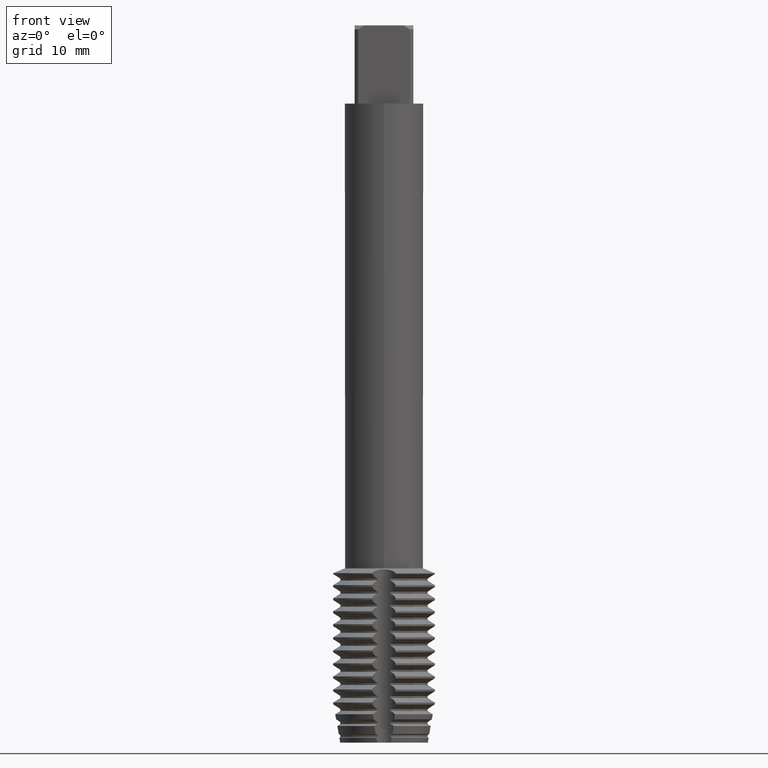
[diagram: clean part render]
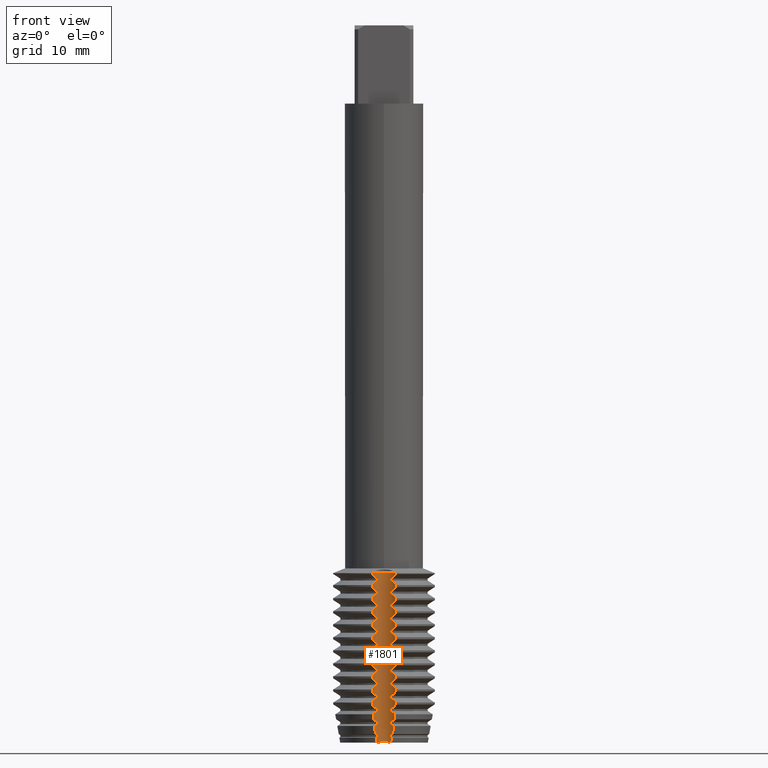
[diagram: same view with one face highlighted and labeled with its STEP entity id]
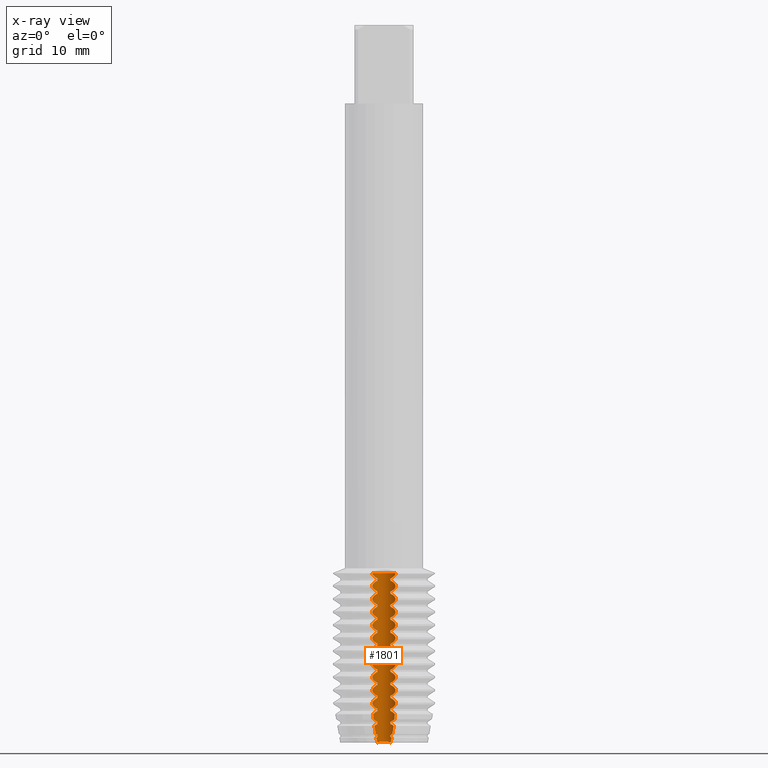
[diagram: x-ray of the same camera — body ghosted, the highlighted face saturated]
A machine part, front view. The second image highlights one B-rep face of the part: STEP entity #1801.
The next image is the same camera in x-ray: the body ghosted, the highlighted face saturated — about 0% of this face is hidden behind the body in this view.
In plain terms, the highlighted cylindrical surface (edge-blend (fillet) strip) has radius 1.8353 mm, axis along (-0, -0, 1).
Its self-contained STEP definition (entity closure, byte-faithful):
#1641=EDGE_CURVE('',#3763,#3669,#4868,.T.);
#1661=VERTEX_POINT('',#4889);
#1671=EDGE_CURVE('',#3625,#2901,#4901,.T.);
#1689=VERTEX_POINT('',#4920);
#1693=EDGE_CURVE('',#4015,#2889,#4924,.T.);
#1753=EDGE_CURVE('',#4279,#3409,#4984,.T.);
#1785=VERTEX_POINT('',#5019);
#1801=ADVANCED_FACE('',(#5037),#5038,.F.);
#1807=VERTEX_POINT('',#5046);
#1809=EDGE_CURVE('',#2825,#3763,#5048,.T.);
#1815=VERTEX_POINT('',#5055);
#1817=VERTEX_POINT('',#5057);
#1845=VERTEX_POINT('',#5089);
#1851=EDGE_CURVE('',#4515,#1969,#5096,.T.);
#1853=EDGE_CURVE('',#2801,#2187,#5098,.T.);
#1867=EDGE_CURVE('',#4777,#3905,#5112,.T.);
#1875=VERTEX_POINT('',#5120);
#1877=VERTEX_POINT('',#5122);
#1887=EDGE_CURVE('',#4395,#2609,#5133,.T.);
#1955=EDGE_CURVE('',#3409,#4463,#5208,.T.);
#1957=EDGE_CURVE('',#4127,#3279,#5210,.T.);
#1969=VERTEX_POINT('',#5225);
#1971=EDGE_CURVE('',#3113,#3625,#5227,.T.);
#1977=EDGE_CURVE('',#4101,#3403,#5234,.T.);
#1979=VERTEX_POINT('',#5236);
#1987=EDGE_CURVE('',#3257,#1877,#5245,.T.);
#1989=VERTEX_POINT('',#5247);
#2013=EDGE_CURVE('',#2555,#2521,#5272,.T.);
#2025=EDGE_CURVE('',#2693,#2839,#5285,.T.);
#2027=VERTEX_POINT('',#5287);
#2041=VERTEX_POINT('',#5302);
#2047=VERTEX_POINT('',#5309);
#2053=EDGE_CURVE('',#2615,#2895,#5316,.T.);
#2057=EDGE_CURVE('',#2707,#4253,#5320,.T.);
#2071=EDGE_CURVE('',#3629,#2217,#5336,.T.);
#2075=EDGE_CURVE('',#1807,#2315,#5340,.T.);
#2083=VERTEX_POINT('',#5348);
#2093=EDGE_CURVE('',#3669,#3417,#5359,.T.);
#2107=EDGE_CURVE('',#3507,#3115,#5375,.T.);
#2123=EDGE_CURVE('',#3565,#3947,#5392,.T.);
#2133=EDGE_CURVE('',#2047,#3089,#5402,.T.);
#2135=EDGE_CURVE('',#1989,#4555,#5404,.T.);
#2153=EDGE_CURVE('',#3085,#4741,#5423,.T.);
#2155=VERTEX_POINT('',#5425);
#2163=EDGE_CURVE('',#3365,#2041,#5434,.T.);
#2187=VERTEX_POINT('',#5460);
#2201=EDGE_CURVE('',#3947,#3729,#5475,.T.);
#2205=VERTEX_POINT('',#5480);
#2207=EDGE_CURVE('',#3531,#1815,#5482,.T.);
#2217=VERTEX_POINT('',#5492);
#2241=EDGE_CURVE('',#2041,#3137,#5518,.T.);
#2251=EDGE_CURVE('',#4727,#3329,#5528,.T.);
#2267=EDGE_CURVE('',#2609,#4407,#5546,.T.);
#2315=VERTEX_POINT('',#5599);
#2347=VERTEX_POINT('',#5636);
#2355=VERTEX_POINT('',#5645);
#2397=EDGE_CURVE('',#3203,#1845,#5689,.T.);
#2403=EDGE_CURVE('',#2205,#4569,#5695,.T.);
#2475=VERTEX_POINT('',#5773);
#2477=EDGE_CURVE('',#1785,#3351,#5775,.T.);
#2479=EDGE_CURVE('',#2889,#2917,#5777,.T.);
#2495=VERTEX_POINT('',#5793);
#2521=VERTEX_POINT('',#5823);
#2525=EDGE_CURVE('',#4463,#4159,#5827,.T.);
#2555=VERTEX_POINT('',#5862);
#2565=EDGE_CURVE('',#3031,#2083,#5874,.T.);
#2575=VERTEX_POINT('',#5885);
#2609=VERTEX_POINT('',#5921);
#2615=VERTEX_POINT('',#5927);
#2653=EDGE_CURVE('',#4569,#4597,#5967,.T.);
#2655=EDGE_CURVE('',#4407,#4769,#5969,.T.);
#2677=EDGE_CURVE('',#3589,#4101,#5992,.T.);
#2693=VERTEX_POINT('',#6010);
#2695=VERTEX_POINT('',#6012);
#2701=EDGE_CURVE('',#1877,#3503,#6018,.T.);
#2707=VERTEX_POINT('',#6025);
#2715=EDGE_CURVE('',#3255,#3365,#6035,.T.);
#2735=EDGE_CURVE('',#2187,#3691,#6059,.T.);
#2737=VERTEX_POINT('',#6061);
#2795=EDGE_CURVE('',#1845,#4517,#6128,.T.);
#2801=VERTEX_POINT('',#6134);
#2823=VERTEX_POINT('',#6158);
#2825=VERTEX_POINT('',#6160);
#2839=VERTEX_POINT('',#6177);
#2841=EDGE_CURVE('',#2495,#1661,#6179,.T.);
#2851=VERTEX_POINT('',#6189);
#2889=VERTEX_POINT('',#6231);
#2895=VERTEX_POINT('',#6237);
#2901=VERTEX_POINT('',#6244);
#2903=VERTEX_POINT('',#6246);
#2917=VERTEX_POINT('',#6261);
#2921=EDGE_CURVE('',#2217,#3565,#6265,.T.);
#2927=EDGE_CURVE('',#3609,#2823,#6271,.T.);
#2941=VERTEX_POINT('',#6286);
#2951=EDGE_CURVE('',#3115,#3609,#6296,.T.);
#2955=EDGE_CURVE('',#3279,#1989,#6300,.T.);
#2963=EDGE_CURVE('',#4741,#1785,#6309,.T.);
#2965=EDGE_CURVE('',#1815,#1979,#6311,.T.);
#2995=EDGE_CURVE('',#1875,#2475,#6344,.T.);
#3003=VERTEX_POINT('',#6353);
#3019=EDGE_CURVE('',#4159,#4395,#6370,.T.);
#3031=VERTEX_POINT('',#6383);
#3059=EDGE_CURVE('',#3905,#3031,#6412,.T.);
#3085=VERTEX_POINT('',#6440);
#3089=VERTEX_POINT('',#6444);
#3095=EDGE_CURVE('',#4555,#4279,#6450,.T.);
#3103=VERTEX_POINT('',#6458);
#3113=VERTEX_POINT('',#6469);
#3115=VERTEX_POINT('',#6471);
#3129=EDGE_CURVE('',#2941,#4727,#6486,.T.);
#3133=EDGE_CURVE('',#2521,#1875,#6490,.T.);
#3137=VERTEX_POINT('',#6494);
#3139=VERTEX_POINT('',#6496);
#3141=VERTEX_POINT('',#6498);
#3149=EDGE_CURVE('',#4517,#2027,#6507,.T.);
#3155=EDGE_CURVE('',#2315,#3589,#6513,.T.);
#3203=VERTEX_POINT('',#6564);
#3247=EDGE_CURVE('',#1817,#4015,#6614,.T.);
#3255=VERTEX_POINT('',#6622);
#3257=VERTEX_POINT('',#6624);
#3265=EDGE_CURVE('',#2083,#4189,#6632,.T.);
#3279=VERTEX_POINT('',#6649);
#3327=EDGE_CURVE('',#2355,#2347,#6702,.T.);
#3329=VERTEX_POINT('',#6704);
#3351=VERTEX_POINT('',#6726);
#3353=EDGE_CURVE('',#4617,#3731,#6728,.T.);
#3365=VERTEX_POINT('',#6740);
#3403=VERTEX_POINT('',#6781);
#3407=EDGE_CURVE('',#3795,#2155,#6785,.T.);
#3409=VERTEX_POINT('',#6787);
#3417=VERTEX_POINT('',#6795);
#3427=EDGE_CURVE('',#4253,#1689,#6805,.T.);
#3443=EDGE_CURVE('',#2901,#2355,#6824,.T.);
#3449=VERTEX_POINT('',#6830);
#3487=EDGE_CURVE('',#2347,#2851,#6873,.T.);
#3503=VERTEX_POINT('',#6892);
#3507=VERTEX_POINT('',#6896);
#3517=VERTEX_POINT('',#6907);
#3519=EDGE_CURVE('',#4769,#2495,#6909,.T.);
#3527=EDGE_CURVE('',#1661,#1817,#6917,.T.);
#3529=EDGE_CURVE('',#4621,#2047,#6919,.T.);
#3531=VERTEX_POINT('',#6921);
#3541=EDGE_CURVE('',#3691,#3003,#6932,.T.);
#3565=VERTEX_POINT('',#6957);
#3579=EDGE_CURVE('',#3517,#3141,#6971,.T.);
#3581=EDGE_CURVE('',#2839,#3531,#6973,.T.);
#3589=VERTEX_POINT('',#6981);
#3609=VERTEX_POINT('',#7001);
#3611=VERTEX_POINT('',#7003);
#3625=VERTEX_POINT('',#7018);
#3629=VERTEX_POINT('',#7022);
#3657=EDGE_CURVE('',#4365,#3103,#7054,.T.);
#3669=VERTEX_POINT('',#7068);
#3691=VERTEX_POINT('',#7094);
#3703=EDGE_CURVE('',#1969,#4617,#7107,.T.);
#3721=EDGE_CURVE('',#3449,#2707,#7125,.T.);
#3729=VERTEX_POINT('',#7134);
#3731=VERTEX_POINT('',#7136);
#3743=EDGE_CURVE('',#2917,#3449,#7150,.T.);
#3763=VERTEX_POINT('',#7171);
#3765=VERTEX_POINT('',#7173);
#3785=EDGE_CURVE('',#3403,#3139,#7194,.T.);
#3789=EDGE_CURVE('',#3503,#2825,#7198,.T.);
#3795=VERTEX_POINT('',#7204);
#3839=EDGE_CURVE('',#2027,#4515,#7255,.T.);
#3853=EDGE_CURVE('',#2575,#4365,#7269,.T.);
#3905=VERTEX_POINT('',#7325);
#3913=EDGE_CURVE('',#3329,#2205,#7333,.T.);
#3947=VERTEX_POINT('',#7367);
#3989=EDGE_CURVE('',#3103,#3085,#7412,.T.);
#3991=EDGE_CURVE('',#1979,#4773,#7414,.T.);
#4001=EDGE_CURVE('',#3139,#3629,#7425,.T.);
#4009=EDGE_CURVE('',#2737,#2693,#7433,.T.);
#4015=VERTEX_POINT('',#7439);
#4027=EDGE_CURVE('',#3137,#4777,#7452,.T.);
#4057=EDGE_CURVE('',#3729,#2575,#7485,.T.);
#4099=EDGE_CURVE('',#2903,#2615,#7532,.T.);
#4101=VERTEX_POINT('',#7534);
#4103=EDGE_CURVE('',#1689,#2695,#7536,.T.);
#4109=VERTEX_POINT('',#7542);
#4127=VERTEX_POINT('',#7562);
#4151=EDGE_CURVE('',#2851,#2801,#7587,.T.);
#4159=VERTEX_POINT('',#7596);
#4171=EDGE_CURVE('',#3611,#1807,#7609,.T.);
#4189=VERTEX_POINT('',#7628);
#4191=EDGE_CURVE('',#2823,#2941,#7630,.T.);
#4239=EDGE_CURVE('',#4545,#2555,#7680,.T.);
#4251=EDGE_CURVE('',#4773,#4109,#7695,.T.);
#4253=VERTEX_POINT('',#7697);
#4279=VERTEX_POINT('',#7728);
#4289=EDGE_CURVE('',#4109,#3795,#7739,.T.);
#4337=EDGE_CURVE('',#4597,#3517,#7794,.T.);
#4365=VERTEX_POINT('',#7824);
#4369=EDGE_CURVE('',#3351,#4729,#7828,.T.);
#4395=VERTEX_POINT('',#7858);
#4407=VERTEX_POINT('',#7871);
#4437=EDGE_CURVE('',#2695,#2903,#7904,.T.);
#4463=VERTEX_POINT('',#7934);
#4497=EDGE_CURVE('',#2475,#3765,#7970,.T.);
#4515=VERTEX_POINT('',#7988);
#4517=VERTEX_POINT('',#7990);
#4545=VERTEX_POINT('',#8021);
#4555=VERTEX_POINT('',#8032);
#4569=VERTEX_POINT('',#8048);
#4571=EDGE_CURVE('',#3731,#3507,#8050,.T.);
#4597=VERTEX_POINT('',#8077);
#4599=EDGE_CURVE('',#3141,#3611,#8079,.T.);
#4617=VERTEX_POINT('',#8098);
#4621=VERTEX_POINT('',#8102);
#4623=EDGE_CURVE('',#2155,#3257,#8104,.T.);
#4637=EDGE_CURVE('',#4189,#3113,#8118,.T.);
#4641=EDGE_CURVE('',#4729,#3255,#8122,.T.);
#4709=EDGE_CURVE('',#2895,#2737,#8200,.T.);
#4725=EDGE_CURVE('',#3003,#4545,#8218,.T.);
#4727=VERTEX_POINT('',#8220);
#4729=VERTEX_POINT('',#8222);
#4741=VERTEX_POINT('',#8234);
#4751=EDGE_CURVE('',#3765,#4621,#8246,.T.);
#4759=EDGE_CURVE('',#3417,#3203,#8255,.T.);
#4769=VERTEX_POINT('',#8265);
#4773=VERTEX_POINT('',#8269);
#4777=VERTEX_POINT('',#8274);
#4795=EDGE_CURVE('',#3089,#4127,#8294,.T.);
#4868=B_SPLINE_CURVE_WITH_KNOTS('',3,(#8365,#8366,#8367,#8368,#8369,#8370,#8371,#8372),.UNSPECIFIED.,.F.,.F.,(4,2,2,4),(2.13275528768351,2.82720289929081,3.52165051089811,4.10401743600082),.UNSPECIFIED.);
#4889=CARTESIAN_POINT('',(0.987271720808468,-6.70065844147364,-91.1457956098522));
#4901=LINE('',#8421,#8422);
#4920=CARTESIAN_POINT('',(0.987271720808468,-6.70065844147364,-95.1457956098521));
#4924=B_SPLINE_CURVE_WITH_KNOTS('',3,(#8457,#8458,#8459,#8460,#8461,#8462,#8463,#8464),.UNSPECIFIED.,.F.,.F.,(4,2,2,4),(2.19973205003222,2.89417966163952,3.58862727324682,4.17099419834953),.UNSPECIFIED.);
#4984=LINE('',#8600,#8601);
#5019=CARTESIAN_POINT('',(-1.77972067254717,-7.79952526297006,-97.8542043901478));
#5037=FACE_OUTER_BOUND('',#8677,.T.);
#5038=CYLINDRICAL_SURFACE('',#8678,1.83530850904129);
#5046=CARTESIAN_POINT('',(-0.987271720808469,-6.70065844147364,-105.145795609852));
#5048=B_SPLINE_CURVE_WITH_KNOTS('',3,(#8689,#8690,#8691,#8692,#8693,#8694),.UNSPECIFIED.,.F.,.F.,(4,2,4),(0.0,0.760059630966725,2.07000009345786),.UNSPECIFIED.);
#5055=CARTESIAN_POINT('',(1.77972067254717,-7.79952526297006,-99.8542043901478));
#5057=CARTESIAN_POINT('',(1.77972067254717,-7.79952526297006,-91.8542043901478));
#5089=CARTESIAN_POINT('',(1.59688283551364,-7.34318976060899,-106.425916295048));
#5096=B_SPLINE_CURVE_WITH_KNOTS('',3,(#8775,#8776,#8777,#8778,#8779,#8780),.UNSPECIFIED.,.F.,.F.,(4,2,4),(0.0,1.55716454179974,3.11432908359949),.UNSPECIFIED.);
#5098=B_SPLINE_CURVE_WITH_KNOTS('',3,(#8783,#8784,#8785,#8786,#8787,#8788,#8789,#8790),.UNSPECIFIED.,.F.,.F.,(4,2,2,4),(5.33572804855497,5.91809497365768,6.61254258526498,7.30699019687228),.UNSPECIFIED.);
#5112=LINE('',#8824,#8825);
#5120=CARTESIAN_POINT('',(-0.987271720808469,-6.70065844147364,-85.1457956098522));
#5122=CARTESIAN_POINT('',(0.987271720808468,-6.70065844147364,-103.145795609852));
#5133=LINE('',#8859,#8860);
#5208=B_SPLINE_CURVE_WITH_KNOTS('',3,(#9022,#9023,#9024,#9025,#9026,#9027,#9028,#9029),.UNSPECIFIED.,.F.,.F.,(4,2,2,4),(5.33572804855496,5.91809497365768,6.61254258526498,7.30699019687228),.UNSPECIFIED.);
#5210=LINE('',#9032,#9033);
#5225=CARTESIAN_POINT('',(1.29124223360371,-6.94355818513051,-108.687004242016));
#5227=B_SPLINE_CURVE_WITH_KNOTS('',3,(#9059,#9060,#9061,#9062,#9063,#9064,#9065,#9066),.UNSPECIFIED.,.F.,.F.,(4,2,2,4),(2.19973205003222,2.89417966163952,3.58862727324682,4.17099419834953),.UNSPECIFIED.);
#5234=LINE('',#9074,#9075);
#5236=CARTESIAN_POINT('',(1.77972067254717,-7.79952526297006,-100.145795609852));
#5245=LINE('',#9115,#9116);
#5247=CARTESIAN_POINT('',(1.77972067254717,-7.79952526297006,-85.8542043901478));
#5272=LINE('',#9191,#9192);
#5285=B_SPLINE_CURVE_WITH_KNOTS('',3,(#9207,#9208,#9209,#9210,#9211,#9212,#9213,#9214),.UNSPECIFIED.,.F.,.F.,(4,2,2,4),(2.19973205003222,2.89417966163952,3.58862727324682,4.17099419834953),.UNSPECIFIED.);
#5287=CARTESIAN_POINT('',(0.987271720808468,-6.70065844147364,-107.145795609852));
#5302=CARTESIAN_POINT('',(-0.987271720808469,-6.70065844147364,-95.1457956098521));
#5309=CARTESIAN_POINT('',(1.77972067254717,-7.79952526297006,-84.0));
#5316=LINE('',#9260,#9261);
#5320=B_SPLINE_CURVE_WITH_KNOTS('',3,(#9267,#9268,#9269,#9270,#9271,#9272,#9273,#9274),.UNSPECIFIED.,.F.,.F.,(4,2,2,4),(2.19973205003222,2.89417966163952,3.58862727324682,4.17099419834953),.UNSPECIFIED.);
#5336=B_SPLINE_CURVE_WITH_KNOTS('',3,(#9317,#9318,#9319,#9320,#9321,#9322,#9323,#9324),.UNSPECIFIED.,.F.,.F.,(4,2,2,4),(5.33572804855496,5.91809497365768,6.61254258526498,7.30699019687228),.UNSPECIFIED.);
#5340=LINE('',#9337,#9338);
#5348=CARTESIAN_POINT('',(-0.987271720808469,-6.70065844147364,-92.8542043901478));
#5359=LINE('',#9389,#9390);
#5375=B_SPLINE_CURVE_WITH_KNOTS('',3,(#9417,#9418,#9419,#9420,#9421,#9422,#9423,#9424),.UNSPECIFIED.,.F.,.F.,(4,2,2,4),(0.0,1.34694199839221,2.02041299758832,2.69388399678442),.UNSPECIFIED.);
#5392=B_SPLINE_CURVE_WITH_KNOTS('',3,(#9451,#9452,#9453,#9454,#9455,#9456,#9457,#9458),.UNSPECIFIED.,.F.,.F.,(4,2,2,4),(2.19973205003222,2.89417966163952,3.58862727324682,4.17099419834953),.UNSPECIFIED.);
#5402=LINE('',#9478,#9479);
#5404=LINE('',#9482,#9483);
#5423=B_SPLINE_CURVE_WITH_KNOTS('',3,(#9524,#9525,#9526,#9527,#9528,#9529,#9530,#9531),.UNSPECIFIED.,.F.,.F.,(4,2,2,4),(5.33572804855496,5.91809497365768,6.61254258526498,7.30699019687228),.UNSPECIFIED.);
#5425=CARTESIAN_POINT('',(1.77972067254717,-7.79952526297006,-102.145795609852));
#5434=B_SPLINE_CURVE_WITH_KNOTS('',3,(#9545,#9546,#9547,#9548,#9549,#9550,#9551,#9552),.UNSPECIFIED.,.F.,.F.,(4,2,2,4),(2.19973205003222,2.89417966163952,3.58862727324682,4.17099419834953),.UNSPECIFIED.);
#5460=CARTESIAN_POINT('',(-1.77972067254717,-7.79952526297006,-88.1457956098522));
#5475=LINE('',#9607,#9608);
#5480=CARTESIAN_POINT('',(-1.29124223360371,-6.94355818513051,-108.687004242016));
#5482=B_SPLINE_CURVE_WITH_KNOTS('',3,(#9616,#9617,#9618,#9619,#9620,#9621,#9622,#9623),.UNSPECIFIED.,.F.,.F.,(4,2,2,4),(5.33572804855496,5.91809497365768,6.61254258526498,7.30699019687228),.UNSPECIFIED.);
#5492=CARTESIAN_POINT('',(-1.77972067254717,-7.79952526297006,-102.145795609852));
#5518=LINE('',#9678,#9679);
#5528=LINE('',#9701,#9702);
#5546=B_SPLINE_CURVE_WITH_KNOTS('',3,(#9737,#9738,#9739,#9740,#9741,#9742,#9743,#9744),.UNSPECIFIED.,.F.,.F.,(4,2,2,4),(5.33572804855496,5.91809497365768,6.61254258526498,7.30699019687228),.UNSPECIFIED.);
#5599=CARTESIAN_POINT('',(-0.987271720808469,-6.70065844147364,-104.854204390148));
#5636=CARTESIAN_POINT('',(-1.77972067254717,-7.79952526297006,-89.8542043901478));
#5645=CARTESIAN_POINT('',(-1.77972067254717,-7.79952526297006,-90.1457956098522));
#5689=B_SPLINE_CURVE_WITH_KNOTS('',3,(#9996,#9997,#9998,#9999,#10000,#10001),.UNSPECIFIED.,.F.,.F.,(4,2,4),(0.0,1.32340287079752,2.64680574159505),.UNSPECIFIED.);
#5695=B_SPLINE_CURVE_WITH_KNOTS('',3,(#10010,#10011,#10012,#10013,#10014,#10015),.UNSPECIFIED.,.F.,.F.,(4,2,4),(0.0,1.55716454179974,3.11432908359949),.UNSPECIFIED.);
#5773=CARTESIAN_POINT('',(-0.987271720808469,-6.70065844147364,-84.8542043901478));
#5775=B_SPLINE_CURVE_WITH_KNOTS('',3,(#10173,#10174,#10175,#10176,#10177,#10178,#10179,#10180),.UNSPECIFIED.,.F.,.F.,(4,2,2,4),(2.19973205003222,2.89417966163952,3.58862727324682,4.17099419834953),.UNSPECIFIED.);
#5777=LINE('',#10183,#10184);
#5793=CARTESIAN_POINT('',(0.987271720808468,-6.70065844147364,-90.8542043901478));
#5823=CARTESIAN_POINT('',(-1.77972067254717,-7.79952526297006,-85.8542043901478));
#5827=LINE('',#10255,#10256);
#5862=CARTESIAN_POINT('',(-1.77972067254717,-7.79952526297006,-86.1457956098522));
#5874=LINE('',#10314,#10315);
#5885=CARTESIAN_POINT('',(-1.77972067254717,-7.79952526297006,-100.145795609852));
#5921=CARTESIAN_POINT('',(0.987271720808468,-6.70065844147364,-89.1457956098522));
#5927=CARTESIAN_POINT('',(0.987271720808468,-6.70065844147364,-96.8542043901479));
#5967=B_SPLINE_CURVE_WITH_KNOTS('',3,(#10495,#10496,#10497,#10498,#10499,#10500),.UNSPECIFIED.,.F.,.F.,(4,2,4),(1.83036006883765,2.52480768044495,3.10717460554767),.UNSPECIFIED.);
#5969=LINE('',#10503,#10504);
#5992=B_SPLINE_CURVE_WITH_KNOTS('',3,(#10536,#10537,#10538,#10539,#10540,#10541),.UNSPECIFIED.,.F.,.F.,(4,2,4),(0.0,1.30994046249114,2.07000009345786),.UNSPECIFIED.);
#6010=CARTESIAN_POINT('',(1.77972067254717,-7.79952526297006,-98.1457956098522));
#6012=CARTESIAN_POINT('',(1.77972067254717,-7.79952526297006,-95.8542043901478));
#6018=B_SPLINE_CURVE_WITH_KNOTS('',3,(#10593,#10594,#10595,#10596,#10597,#10598,#10599,#10600),.UNSPECIFIED.,.F.,.F.,(4,2,2,4),(5.33572804855496,5.91809497365768,6.61254258526498,7.30699019687228),.UNSPECIFIED.);
#6025=CARTESIAN_POINT('',(1.77972067254717,-7.79952526297006,-94.1457956098522));
#6035=LINE('',#10620,#10621);
#6059=LINE('',#10683,#10684);
#6061=CARTESIAN_POINT('',(1.77972067254717,-7.79952526297006,-97.8542043901478));
#6128=B_SPLINE_CURVE_WITH_KNOTS('',3,(#10798,#10799,#10800,#10801,#10802,#10803,#10804,#10805),.UNSPECIFIED.,.F.,.F.,(4,2,2,4),(1.40545723121846,2.09990484282576,2.79435245443306,3.37671937953577),.UNSPECIFIED.);
#6134=CARTESIAN_POINT('',(-0.987271720808469,-6.70065844147364,-88.8542043901478));
#6158=CARTESIAN_POINT('',(-1.02125189306256,-6.72287472521362,-110.0));
#6160=CARTESIAN_POINT('',(1.77972067254717,-7.79952526297006,-104.0));
#6177=CARTESIAN_POINT('',(0.987271720808468,-6.70065844147364,-98.8542043901478));
#6179=LINE('',#10906,#10907);
#6189=CARTESIAN_POINT('',(-0.987271720808469,-6.70065844147364,-89.1457956098522));
#6231=CARTESIAN_POINT('',(0.987271720808468,-6.70065844147364,-92.8542043901478));
#6237=CARTESIAN_POINT('',(0.987271720808468,-6.70065844147364,-97.1457956098522));
#6244=CARTESIAN_POINT('',(-0.987271720808469,-6.70065844147364,-90.8542043901478));
#6246=CARTESIAN_POINT('',(1.77972067254717,-7.79952526297006,-96.1457956098522));
#6261=CARTESIAN_POINT('',(0.987271720808468,-6.70065844147364,-93.1457956098522));
#6265=LINE('',#11053,#11054);
#6271=B_SPLINE_CURVE_WITH_KNOTS('',3,(#11069,#11070,#11071,#11072,#11073,#11074,#11075,#11076,#11077,#11078,#11079,#11080,#11081,#11082),.UNSPECIFIED.,.F.,.F.,(4,2,2,2,2,2,4),(2.39529792558418,2.97982352121849,3.27208631903564,3.5643491168528,3.85661191466995,4.14887471248711,4.73340030812142),.UNSPECIFIED.);
#6286=CARTESIAN_POINT('',(-1.18722661182801,-6.84821224301352,-109.248195027742));
#6296=B_SPLINE_CURVE_WITH_KNOTS('',3,(#11125,#11126,#11127,#11128,#11129,#11130,#11131,#11132,#11133,#11134,#11135,#11136,#11137,#11138),.UNSPECIFIED.,.F.,.F.,(4,2,2,2,2,2,4),(2.39529792558418,2.97982352121849,3.27208631903564,3.5643491168528,3.85661191466995,4.14887471248711,4.73340030812142),.UNSPECIFIED.);
#6300=B_SPLINE_CURVE_WITH_KNOTS('',3,(#11151,#11152,#11153,#11154,#11155,#11156,#11157,#11158),.UNSPECIFIED.,.F.,.F.,(4,2,2,4),(5.33572804855496,5.91809497365768,6.61254258526498,7.30699019687228),.UNSPECIFIED.);
#6309=LINE('',#11170,#11171);
#6311=LINE('',#11174,#11175);
#6344=LINE('',#11223,#11224);
#6353=CARTESIAN_POINT('',(-0.987271720808469,-6.70065844147364,-87.1457956098522));
#6370=B_SPLINE_CURVE_WITH_KNOTS('',3,(#11255,#11256,#11257,#11258,#11259,#11260,#11261,#11262),.UNSPECIFIED.,.F.,.F.,(4,2,2,4),(2.19973205003222,2.89417966163952,3.58862727324682,4.17099419834954),.UNSPECIFIED.);
#6383=CARTESIAN_POINT('',(-0.987271720808469,-6.70065844147364,-93.1457956098522));
#6412=B_SPLINE_CURVE_WITH_KNOTS('',3,(#11350,#11351,#11352,#11353,#11354,#11355,#11356,#11357),.UNSPECIFIED.,.F.,.F.,(4,2,2,4),(2.19973205003222,2.89417966163952,3.58862727324682,4.17099419834953),.UNSPECIFIED.);
#6440=CARTESIAN_POINT('',(-0.987271720808469,-6.70065844147364,-98.8542043901478));
#6444=CARTESIAN_POINT('',(1.77972067254717,-7.79952526297006,-84.1457956098522));
#6450=B_SPLINE_CURVE_WITH_KNOTS('',3,(#11453,#11454,#11455,#11456,#11457,#11458,#11459,#11460),.UNSPECIFIED.,.F.,.F.,(4,2,2,4),(2.19973205003222,2.89417966163952,3.58862727324682,4.17099419834954),.UNSPECIFIED.);
#6458=CARTESIAN_POINT('',(-0.987271720808469,-6.70065844147364,-99.1457956098522));
#6469=CARTESIAN_POINT('',(-1.77972067254717,-7.79952526297006,-91.8542043901478));
#6471=CARTESIAN_POINT('',(1.02125189306256,-6.72287472521362,-110.0));
#6486=B_SPLINE_CURVE_WITH_KNOTS('',3,(#11513,#11514,#11515,#11516,#11517,#11518),.UNSPECIFIED.,.F.,.F.,(4,2,4),(1.40191134124684,2.09635895285414,2.67872587795685),.UNSPECIFIED.);
#6490=B_SPLINE_CURVE_WITH_KNOTS('',3,(#11523,#11524,#11525,#11526,#11527,#11528,#11529,#11530),.UNSPECIFIED.,.F.,.F.,(4,2,2,4),(2.19973205003222,2.89417966163952,3.58862727324682,4.17099419834953),.UNSPECIFIED.);
#6494=CARTESIAN_POINT('',(-0.987271720808469,-6.70065844147364,-94.8542043901478));
#6496=CARTESIAN_POINT('',(-0.987271720808469,-6.70065844147364,-103.145795609852));
#6498=CARTESIAN_POINT('',(-1.59688283551364,-7.34318976060899,-106.425916295048));
#6507=LINE('',#11575,#11576);
#6513=B_SPLINE_CURVE_WITH_KNOTS('',3,(#11599,#11600,#11601,#11602,#11603,#11604,#11605,#11606),.UNSPECIFIED.,.F.,.F.,(4,2,2,4),(5.26875128620625,5.85111821130897,6.54556582291627,7.24001343452357),.UNSPECIFIED.);
#6564=CARTESIAN_POINT('',(1.66871203331499,-7.4837613439296,-105.662262813572));
#6614=LINE('',#11792,#11793);
#6622=CARTESIAN_POINT('',(-1.77972067254717,-7.79952526297006,-96.1457956098522));
#6624=CARTESIAN_POINT('',(0.987271720808468,-6.70065844147364,-102.854204390148));
#6632=B_SPLINE_CURVE_WITH_KNOTS('',3,(#11816,#11817,#11818,#11819,#11820,#11821,#11822,#11823),.UNSPECIFIED.,.F.,.F.,(4,2,2,4),(5.33572804855496,5.91809497365768,6.61254258526498,7.30699019687228),.UNSPECIFIED.);
#6649=CARTESIAN_POINT('',(0.987271720808468,-6.70065844147364,-85.1457956098522));
#6702=LINE('',#11939,#11940);
#6704=CARTESIAN_POINT('',(-0.987271720808469,-6.70065844147364,-108.854204390148));
#6726=CARTESIAN_POINT('',(-0.987271720808469,-6.70065844147364,-97.1457956098522));
#6728=LINE('',#11995,#11996);
#6740=CARTESIAN_POINT('',(-1.77972067254717,-7.79952526297006,-95.8542043901478));
#6781=CARTESIAN_POINT('',(-1.77972067254717,-7.79952526297006,-103.854204390148));
#6785=LINE('',#12095,#12096);
#6787=CARTESIAN_POINT('',(0.987271720808468,-6.70065844147364,-87.1457956098522));
#6795=CARTESIAN_POINT('',(0.987271720808468,-6.70065844147364,-105.145795609852));
#6805=LINE('',#12141,#12142);
#6824=B_SPLINE_CURVE_WITH_KNOTS('',3,(#12164,#12165,#12166,#12167,#12168,#12169,#12170,#12171),.UNSPECIFIED.,.F.,.F.,(4,2,2,4),(5.33572804855497,5.91809497365768,6.61254258526498,7.30699019687228),.UNSPECIFIED.);
#6830=CARTESIAN_POINT('',(1.77972067254717,-7.79952526297006,-93.8542043901478));
#6873=B_SPLINE_CURVE_WITH_KNOTS('',3,(#12267,#12268,#12269,#12270,#12271,#12272,#12273,#12274),.UNSPECIFIED.,.F.,.F.,(4,2,2,4),(2.19973205003222,2.89417966163952,3.58862727324682,4.17099419834953),.UNSPECIFIED.);
#6892=CARTESIAN_POINT('',(1.77972067254717,-7.79952526297006,-103.854204390148));
#6896=CARTESIAN_POINT('',(1.187226611828,-6.84821224301352,-109.248195027742));
#6907=CARTESIAN_POINT('',(-0.987271720808469,-6.70065844147364,-106.854204390148));
#6909=B_SPLINE_CURVE_WITH_KNOTS('',3,(#12324,#12325,#12326,#12327,#12328,#12329,#12330,#12331),.UNSPECIFIED.,.F.,.F.,(4,2,2,4),(2.19973205003222,2.89417966163952,3.58862727324682,4.17099419834954),.UNSPECIFIED.);
#6917=B_SPLINE_CURVE_WITH_KNOTS('',3,(#12341,#12342,#12343,#12344,#12345,#12346,#12347,#12348),.UNSPECIFIED.,.F.,.F.,(4,2,2,4),(5.33572804855496,5.91809497365768,6.61254258526498,7.30699019687228),.UNSPECIFIED.);
#6919=CIRCLE('',#12351,1.83530850904129);
#6921=CARTESIAN_POINT('',(0.987271720808468,-6.70065844147364,-99.1457956098522));
#6932=B_SPLINE_CURVE_WITH_KNOTS('',3,(#12368,#12369,#12370,#12371,#12372,#12373,#12374,#12375),.UNSPECIFIED.,.F.,.F.,(4,2,2,4),(2.19973205003222,2.89417966163952,3.58862727324682,4.17099419834953),.UNSPECIFIED.);
#6957=CARTESIAN_POINT('',(-1.77972067254717,-7.79952526297006,-101.854204390148));
#6971=B_SPLINE_CURVE_WITH_KNOTS('',3,(#12443,#12444,#12445,#12446,#12447,#12448,#12449,#12450),.UNSPECIFIED.,.F.,.F.,(4,2,2,4),(4.5414532297412,5.12382015484392,5.81826776645122,6.51271537805852),.UNSPECIFIED.);
#6973=LINE('',#12453,#12454);
#6981=CARTESIAN_POINT('',(-1.77137772765112,-7.76761591271752,-104.164828348079));
#7001=CARTESIAN_POINT('',(-3.53292107107981E-016,-6.412493065,-109.827470796782));
#7003=CARTESIAN_POINT('',(-1.66871203331499,-7.4837613439296,-105.662262813572));
#7018=CARTESIAN_POINT('',(-0.987271720808469,-6.70065844147364,-91.1457956098522));
#7022=CARTESIAN_POINT('',(-0.987271720808469,-6.70065844147364,-102.854204390148));
#7054=B_SPLINE_CURVE_WITH_KNOTS('',3,(#12606,#12607,#12608,#12609,#12610,#12611,#12612,#12613),.UNSPECIFIED.,.F.,.F.,(4,2,2,4),(2.19973205003222,2.89417966163952,3.58862727324682,4.17099419834953),.UNSPECIFIED.);
#7068=CARTESIAN_POINT('',(0.987271720808468,-6.70065844147364,-104.854204390148));
#7094=CARTESIAN_POINT('',(-1.77972067254717,-7.79952526297006,-87.8542043901478));
#7107=B_SPLINE_CURVE_WITH_KNOTS('',3,(#12682,#12683,#12684,#12685,#12686,#12687),.UNSPECIFIED.,.F.,.F.,(4,2,4),(1.53193971069557,2.22638732230287,2.80875424740558),.UNSPECIFIED.);
#7125=LINE('',#12713,#12714);
#7134=CARTESIAN_POINT('',(-0.987271720808469,-6.70065844147364,-100.854204390148));
#7136=CARTESIAN_POINT('',(0.987271720808468,-6.70065844147364,-109.145795609852));
#7150=B_SPLINE_CURVE_WITH_KNOTS('',3,(#12753,#12754,#12755,#12756,#12757,#12758,#12759,#12760),.UNSPECIFIED.,.F.,.F.,(4,2,2,4),(5.33572804855496,5.91809497365768,6.61254258526498,7.30699019687228),.UNSPECIFIED.);
#7171=CARTESIAN_POINT('',(1.77137772765111,-7.76761591271752,-104.164828348079));
#7173=CARTESIAN_POINT('',(-1.77972067254717,-7.79952526297006,-84.1457956098522));
#7194=B_SPLINE_CURVE_WITH_KNOTS('',3,(#12830,#12831,#12832,#12833,#12834,#12835,#12836,#12837),.UNSPECIFIED.,.F.,.F.,(4,2,2,4),(2.19973205003222,2.89417966163952,3.58862727324682,4.17099419834953),.UNSPECIFIED.);
#7198=LINE('',#12842,#12843);
#7204=CARTESIAN_POINT('',(1.77972067254717,-7.79952526297006,-101.854204390148));
#7255=B_SPLINE_CURVE_WITH_KNOTS('',3,(#12924,#12925,#12926,#12927,#12928,#12929),.UNSPECIFIED.,.F.,.F.,(4,2,4),(4.2719084557531,4.85427538085581,5.54872299246311),.UNSPECIFIED.);
#7269=LINE('',#12962,#12963);
#7325=CARTESIAN_POINT('',(-1.77972067254717,-7.79952526297006,-93.8542043901478));
#7333=B_SPLINE_CURVE_WITH_KNOTS('',3,(#13091,#13092,#13093,#13094,#13095,#13096),.UNSPECIFIED.,.F.,.F.,(4,2,4),(3.97348809761101,4.55585502271373,5.25030263432103),.UNSPECIFIED.);
#7367=CARTESIAN_POINT('',(-0.987271720808469,-6.70065844147364,-101.145795609852));
#7412=LINE('',#13256,#13257);
#7414=B_SPLINE_CURVE_WITH_KNOTS('',3,(#13260,#13261,#13262,#13263,#13264,#13265,#13266,#13267),.UNSPECIFIED.,.F.,.F.,(4,2,2,4),(2.19973205003222,2.89417966163952,3.58862727324682,4.17099419834953),.UNSPECIFIED.);
#7425=LINE('',#13289,#13290);
#7433=LINE('',#13313,#13314);
#7439=CARTESIAN_POINT('',(1.77972067254717,-7.79952526297006,-92.1457956098522));
#7452=B_SPLINE_CURVE_WITH_KNOTS('',3,(#13337,#13338,#13339,#13340,#13341,#13342,#13343,#13344),.UNSPECIFIED.,.F.,.F.,(4,2,2,4),(5.33572804855496,5.91809497365768,6.61254258526498,7.30699019687228),.UNSPECIFIED.);
#7485=B_SPLINE_CURVE_WITH_KNOTS('',3,(#13389,#13390,#13391,#13392,#13393,#13394,#13395,#13396),.UNSPECIFIED.,.F.,.F.,(4,2,2,4),(5.33572804855496,5.91809497365768,6.61254258526498,7.30699019687228),.UNSPECIFIED.);
#7532=B_SPLINE_CURVE_WITH_KNOTS('',3,(#13482,#13483,#13484,#13485,#13486,#13487,#13488,#13489),.UNSPECIFIED.,.F.,.F.,(4,2,2,4),(2.19973205003222,2.89417966163952,3.58862727324682,4.17099419834953),.UNSPECIFIED.);
#7534=CARTESIAN_POINT('',(-1.77972067254717,-7.79952526297006,-104.0));
#7536=B_SPLINE_CURVE_WITH_KNOTS('',3,(#13494,#13495,#13496,#13497,#13498,#13499,#13500,#13501),.UNSPECIFIED.,.F.,.F.,(4,2,2,4),(5.33572804855496,5.91809497365768,6.61254258526498,7.30699019687228),.UNSPECIFIED.);
#7542=CARTESIAN_POINT('',(0.987271720808468,-6.70065844147364,-101.145795609852));
#7562=CARTESIAN_POINT('',(0.987271720808468,-6.70065844147364,-84.8542043901478));
#7587=LINE('',#13590,#13591);
#7596=CARTESIAN_POINT('',(1.77972067254717,-7.79952526297006,-88.1457956098522));
#7609=B_SPLINE_CURVE_WITH_KNOTS('',3,(#13631,#13632,#13633,#13634,#13635,#13636,#13637,#13638),.UNSPECIFIED.,.F.,.F.,(4,2,2,4),(1.62365615844586,2.31810377005316,3.01255138166046,3.59491830676317),.UNSPECIFIED.);
#7628=CARTESIAN_POINT('',(-1.77972067254717,-7.79952526297006,-92.1457956098522));
#7630=B_SPLINE_CURVE_WITH_KNOTS('',3,(#13677,#13678,#13679,#13680,#13681,#13682,#13683,#13684),.UNSPECIFIED.,.F.,.F.,(4,2,2,4),(0.0,0.673470999196106,1.34694199839221,2.69388399678442),.UNSPECIFIED.);
#7680=B_SPLINE_CURVE_WITH_KNOTS('',3,(#13796,#13797,#13798,#13799,#13800,#13801,#13802,#13803),.UNSPECIFIED.,.F.,.F.,(4,2,2,4),(5.33572804855497,5.91809497365768,6.61254258526498,7.30699019687228),.UNSPECIFIED.);
#7695=LINE('',#13821,#13822);
#7697=CARTESIAN_POINT('',(0.987271720808468,-6.70065844147364,-94.8542043901478));
#7728=CARTESIAN_POINT('',(0.987271720808468,-6.70065844147364,-86.8542043901478));
#7739=B_SPLINE_CURVE_WITH_KNOTS('',3,(#13882,#13883,#13884,#13885,#13886,#13887,#13888,#13889),.UNSPECIFIED.,.F.,.F.,(4,2,2,4),(5.33572804855496,5.91809497365768,6.61254258526498,7.30699019687228),.UNSPECIFIED.);
#7794=LINE('',#13990,#13991);
#7824=CARTESIAN_POINT('',(-1.77972067254717,-7.79952526297006,-99.8542043901478));
#7828=LINE('',#14041,#14042);
#7858=CARTESIAN_POINT('',(0.987271720808468,-6.70065844147364,-88.8542043901478));
#7871=CARTESIAN_POINT('',(1.77972067254717,-7.79952526297006,-89.8542043901478));
#7904=LINE('',#14181,#14182);
#7934=CARTESIAN_POINT('',(1.77972067254717,-7.79952526297006,-87.8542043901478));
#7970=B_SPLINE_CURVE_WITH_KNOTS('',3,(#14322,#14323,#14324,#14325,#14326,#14327,#14328,#14329),.UNSPECIFIED.,.F.,.F.,(4,2,2,4),(5.33572804855497,5.91809497365768,6.61254258526498,7.30699019687228),.UNSPECIFIED.);
#7988=CARTESIAN_POINT('',(1.47685716090405,-7.15819143750356,-107.455228920657));
#7990=CARTESIAN_POINT('',(0.987271720808468,-6.70065844147364,-106.854204390148));
#8021=CARTESIAN_POINT('',(-0.987271720808469,-6.70065844147364,-86.8542043901478));
#8032=CARTESIAN_POINT('',(1.77972067254717,-7.79952526297006,-86.1457956098522));
#8048=CARTESIAN_POINT('',(-1.47685716090406,-7.15819143750356,-107.455228920657));
#8050=B_SPLINE_CURVE_WITH_KNOTS('',3,(#14488,#14489,#14490,#14491,#14492,#14493),.UNSPECIFIED.,.F.,.F.,(4,2,4),(3.84345972816228,4.425826653265,5.1202742648723),.UNSPECIFIED.);
#8077=CARTESIAN_POINT('',(-0.987271720808469,-6.70065844147364,-107.145795609852));
#8079=B_SPLINE_CURVE_WITH_KNOTS('',3,(#14553,#14554,#14555,#14556,#14557,#14558),.UNSPECIFIED.,.F.,.F.,(4,2,4),(0.0,1.32340287079752,2.64680574159505),.UNSPECIFIED.);
#8098=CARTESIAN_POINT('',(0.987271720808468,-6.70065844147364,-108.854204390148));
#8102=CARTESIAN_POINT('',(-1.77972067254717,-7.79952526297006,-84.0));
#8104=B_SPLINE_CURVE_WITH_KNOTS('',3,(#14591,#14592,#14593,#14594,#14595,#14596,#14597,#14598),.UNSPECIFIED.,.F.,.F.,(4,2,2,4),(2.19973205003222,2.89417966163952,3.58862727324682,4.17099419834953),.UNSPECIFIED.);
#8118=LINE('',#14622,#14623);
#8122=B_SPLINE_CURVE_WITH_KNOTS('',3,(#14628,#14629,#14630,#14631,#14632,#14633,#14634,#14635),.UNSPECIFIED.,.F.,.F.,(4,2,2,4),(5.33572804855496,5.91809497365768,6.61254258526498,7.30699019687228),.UNSPECIFIED.);
#8200=B_SPLINE_CURVE_WITH_KNOTS('',3,(#14801,#14802,#14803,#14804,#14805,#14806,#14807,#14808),.UNSPECIFIED.,.F.,.F.,(4,2,2,4),(5.33572804855496,5.91809497365768,6.61254258526498,7.30699019687228),.UNSPECIFIED.);
#8218=LINE('',#14836,#14837);
#8220=CARTESIAN_POINT('',(-0.987271720808469,-6.70065844147364,-109.145795609852));
#8222=CARTESIAN_POINT('',(-0.987271720808469,-6.70065844147364,-96.8542043901479));
#8234=CARTESIAN_POINT('',(-1.77972067254717,-7.79952526297006,-98.1457956098522));
#8246=LINE('',#14882,#14883);
#8255=B_SPLINE_CURVE_WITH_KNOTS('',3,(#14901,#14902,#14903,#14904,#14905,#14906,#14907,#14908),.UNSPECIFIED.,.F.,.F.,(4,2,2,4),(4.7596521569686,5.34201908207132,6.03646669367862,6.73091430528592),.UNSPECIFIED.);
#8265=CARTESIAN_POINT('',(1.77972067254717,-7.79952526297006,-90.1457956098522));
#8269=CARTESIAN_POINT('',(0.987271720808468,-6.70065844147364,-100.854204390148));
#8274=CARTESIAN_POINT('',(-1.77972067254717,-7.79952526297006,-94.1457956098522));
#8294=B_SPLINE_CURVE_WITH_KNOTS('',3,(#14989,#14990,#14991,#14992,#14993,#14994,#14995,#14996),.UNSPECIFIED.,.F.,.F.,(4,2,2,4),(2.19973205003222,2.89417966163952,3.58862727324682,4.17099419834954),.UNSPECIFIED.);
#8365=CARTESIAN_POINT('',(1.78929349294444,-7.83940701057838,-104.122117338661));
#8366=CARTESIAN_POINT('',(1.74468477522727,-7.64396344819811,-104.237858607262));
#8367=CARTESIAN_POINT('',(1.66260871549452,-7.44034987985397,-104.363192788205));
#8368=CARTESIAN_POINT('',(1.42614030577632,-7.0720591836679,-104.599587943078));
#8369=CARTESIAN_POINT('',(1.27169194694715,-6.90733813043124,-104.710524435705));
#8370=CARTESIAN_POINT('',(0.957217905185465,-6.6716607938297,-104.873931151122));
#8371=CARTESIAN_POINT('',(0.781656357638431,-6.57509431091506,-104.943211882879));
#8372=CARTESIAN_POINT('',(0.590941990083868,-6.51023290267458,-104.990460118701));
#8421=CARTESIAN_POINT('',(-0.987271720808466,-6.70065844147364,-84.0));
#8422=VECTOR('',#15127,1.0);
#8457=CARTESIAN_POINT('',(1.78929349294444,-7.83940701057838,-92.1221173386609));
#8458=CARTESIAN_POINT('',(1.74468477522727,-7.64396344819811,-92.2378586072621));
#8459=CARTESIAN_POINT('',(1.66260871549452,-7.44034987985397,-92.3631927882049));
#8460=CARTESIAN_POINT('',(1.42614030577632,-7.0720591836679,-92.599587943078));
#8461=CARTESIAN_POINT('',(1.27169194694715,-6.90733813043124,-92.7105244357054));
#8462=CARTESIAN_POINT('',(0.957217905185465,-6.6716607938297,-92.8739311511217));
#8463=CARTESIAN_POINT('',(0.781656357638431,-6.57509431091506,-92.9432118828788));
#8464=CARTESIAN_POINT('',(0.590941990083868,-6.51023290267458,-92.9904601187007));
#8600=CARTESIAN_POINT('',(0.987271720808464,-6.70065844147364,-84.0));
#8601=VECTOR('',#15160,1.0);
#8677=EDGE_LOOP('',(#15248,#15249,#15250,#15251,#15252,#15253,#15254,#15255,#15256,#15257,#15258,#15259,#15260,#15261,#15262,#15263,#15264,#15265,#15266,#15267,#15268,#15269,#15270,#15271,#15272,#15273,#15274,#15275,#15276,#15277,#15278,#15279,#15280,#15281,#15282,#15283,#15284,#15285,#15286,#15287,#15288,#15289,#15290,#15291,#15292,#15293,#15294,#15295,#15296,#15297,#15298,#15299,#15300,#15301,#15302,#15303,#15304,#15305,#15306,#15307,#15308,#15309,#15310,#15311,#15312,#15313,#15314,#15315,#15316,#15317,#15318,#15319,#15320,#15321,#15322,#15323,#15324,#15325,#15326,#15327,#15328,#15329,#15330,#15331,#15332,#15333,#15334,#15335,#15336,#15337,#15338,#15339,#15340,#15341,#15342,#15343,#15344,#15345,#15346,#15347,#15348,#15349,#15350,#15351,#15352,#15353,#15354,#15355,#15356,#15357,#15358));
#8678=AXIS2_PLACEMENT_3D('',#15359,#15360,#15361);
#8689=CARTESIAN_POINT('',(1.81794490984196,-7.99594123945266,-103.0));
#8690=CARTESIAN_POINT('',(1.81110213056667,-7.94654959637001,-103.248397848513));
#8691=CARTESIAN_POINT('',(1.80034981324724,-7.88784791489884,-103.54650689414));
#8692=CARTESIAN_POINT('',(1.77023824945982,-7.75592053396031,-104.223107590915));
#8693=CARTESIAN_POINT('',(1.73992729945896,-7.65745436516876,-104.736855293933));
#8694=CARTESIAN_POINT('',(1.70826815610103,-7.57684909419598,-105.164828348079));
#8775=CARTESIAN_POINT('',(1.59384630535682,-7.33785032355598,-106.455228920657));
#8776=CARTESIAN_POINT('',(1.54103656365346,-7.24535019054791,-106.963237573187));
#8777=CARTESIAN_POINT('',(1.47316003501911,-7.14574830807442,-107.521267075152));
#8778=CARTESIAN_POINT('',(1.30602781949066,-6.95203412886587,-108.633177256811));
#8779=CARTESIAN_POINT('',(1.20666790166785,-6.85792177815526,-109.187042257559));
#8780=CARTESIAN_POINT('',(1.09471301226048,-6.77472291214066,-109.687004242016));
#8783=CARTESIAN_POINT('',(-0.590941990083872,-6.51023290267458,-88.9904601187007));
#8784=CARTESIAN_POINT('',(-0.781656357638433,-6.57509431091507,-88.9432118828788));
#8785=CARTESIAN_POINT('',(-0.957217905185467,-6.6716607938297,-88.8739311511217));
#8786=CARTESIAN_POINT('',(-1.27169194694715,-6.90733813043124,-88.7105244357054));
#8787=CARTESIAN_POINT('',(-1.42614030577632,-7.07205918366789,-88.599587943078));
#8788=CARTESIAN_POINT('',(-1.66260871549452,-7.44034987985396,-88.3631927882049));
#8789=CARTESIAN_POINT('',(-1.74468477522727,-7.64396344819811,-88.2378586072621));
#8790=CARTESIAN_POINT('',(-1.78929349294444,-7.83940701057838,-88.1221173386609));
#8824=CARTESIAN_POINT('',(-1.77972067254717,-7.79952526297006,-84.0));
#8825=VECTOR('',#15547,1.0);
#8859=CARTESIAN_POINT('',(0.987271720808464,-6.70065844147364,-84.0));
#8860=VECTOR('',#15562,1.0);
#9022=CARTESIAN_POINT('',(0.59094199008387,-6.51023290267458,-87.0095398812993));
#9023=CARTESIAN_POINT('',(0.781656357638433,-6.57509431091506,-87.0567881171212));
#9024=CARTESIAN_POINT('',(0.957217905185465,-6.6716607938297,-87.1260688488783));
#9025=CARTESIAN_POINT('',(1.27169194694715,-6.90733813043124,-87.2894755642946));
#9026=CARTESIAN_POINT('',(1.42614030577632,-7.07205918366789,-87.400412056922));
#9027=CARTESIAN_POINT('',(1.66260871549451,-7.44034987985397,-87.6368072117951));
#9028=CARTESIAN_POINT('',(1.74468477522727,-7.64396344819811,-87.7621413927379));
#9029=CARTESIAN_POINT('',(1.78929349294444,-7.83940701057838,-87.8778826613391));
#9032=CARTESIAN_POINT('',(0.987271720808464,-6.70065844147364,-84.0));
#9033=VECTOR('',#15650,1.0);
#9059=CARTESIAN_POINT('',(-1.78929349294444,-7.83940701057838,-91.8778826613391));
#9060=CARTESIAN_POINT('',(-1.74468477522727,-7.64396344819811,-91.7621413927379));
#9061=CARTESIAN_POINT('',(-1.66260871549452,-7.44034987985398,-91.6368072117951));
#9062=CARTESIAN_POINT('',(-1.42614030577633,-7.07205918366791,-91.400412056922));
#9063=CARTESIAN_POINT('',(-1.27169194694715,-6.90733813043124,-91.2894755642946));
#9064=CARTESIAN_POINT('',(-0.957217905185467,-6.6716607938297,-91.1260688488783));
#9065=CARTESIAN_POINT('',(-0.781656357638442,-6.57509431091507,-91.0567881171212));
#9066=CARTESIAN_POINT('',(-0.590941990083882,-6.51023290267458,-91.0095398812993));
#9074=CARTESIAN_POINT('',(-1.77972067254717,-7.79952526297006,-84.0));
#9075=VECTOR('',#15684,1.0);
#9115=CARTESIAN_POINT('',(0.987271720808464,-6.70065844147364,-84.0));
#9116=VECTOR('',#15693,1.0);
#9191=CARTESIAN_POINT('',(-1.77972067254717,-7.79952526297006,-84.0));
#9192=VECTOR('',#15710,1.0);
#9207=CARTESIAN_POINT('',(1.78929349294444,-7.83940701057838,-98.1221173386609));
#9208=CARTESIAN_POINT('',(1.74468477522727,-7.64396344819811,-98.2378586072621));
#9209=CARTESIAN_POINT('',(1.66260871549452,-7.44034987985397,-98.3631927882049));
#9210=CARTESIAN_POINT('',(1.42614030577632,-7.0720591836679,-98.599587943078));
#9211=CARTESIAN_POINT('',(1.27169194694715,-6.90733813043124,-98.7105244357054));
#9212=CARTESIAN_POINT('',(0.957217905185465,-6.6716607938297,-98.8739311511217));
#9213=CARTESIAN_POINT('',(0.781656357638431,-6.57509431091506,-98.9432118828788));
#9214=CARTESIAN_POINT('',(0.590941990083868,-6.51023290267458,-98.9904601187007));
#9260=CARTESIAN_POINT('',(0.987271720808464,-6.70065844147364,-84.0));
#9261=VECTOR('',#15754,1.0);
#9267=CARTESIAN_POINT('',(1.78929349294444,-7.83940701057838,-94.1221173386609));
#9268=CARTESIAN_POINT('',(1.74468477522727,-7.64396344819811,-94.2378586072621));
#9269=CARTESIAN_POINT('',(1.66260871549452,-7.44034987985397,-94.3631927882049));
#9270=CARTESIAN_POINT('',(1.42614030577632,-7.0720591836679,-94.599587943078));
#9271=CARTESIAN_POINT('',(1.27169194694715,-6.90733813043124,-94.7105244357054));
#9272=CARTESIAN_POINT('',(0.957217905185465,-6.6716607938297,-94.8739311511217));
#9273=CARTESIAN_POINT('',(0.781656357638431,-6.57509431091506,-94.9432118828788));
#9274=CARTESIAN_POINT('',(0.590941990083868,-6.51023290267458,-94.9904601187007));
#9317=CARTESIAN_POINT('',(-0.590941990083872,-6.51023290267458,-102.990460118701));
#9318=CARTESIAN_POINT('',(-0.781656357638433,-6.57509431091507,-102.943211882879));
#9319=CARTESIAN_POINT('',(-0.957217905185467,-6.6716607938297,-102.873931151122));
#9320=CARTESIAN_POINT('',(-1.27169194694715,-6.90733813043124,-102.710524435705));
#9321=CARTESIAN_POINT('',(-1.42614030577632,-7.07205918366789,-102.599587943078));
#9322=CARTESIAN_POINT('',(-1.66260871549452,-7.44034987985396,-102.363192788205));
#9323=CARTESIAN_POINT('',(-1.74468477522727,-7.64396344819811,-102.237858607262));
#9324=CARTESIAN_POINT('',(-1.78929349294444,-7.83940701057838,-102.122117338661));
#9337=CARTESIAN_POINT('',(-0.987271720808466,-6.70065844147364,-84.0));
#9338=VECTOR('',#15775,1.0);
#9389=CARTESIAN_POINT('',(0.987271720808464,-6.70065844147364,-84.0));
#9390=VECTOR('',#15893,1.0);
#9417=CARTESIAN_POINT('',(1.36339122952551,-7.01917564292463,-108.248195027743));
#9418=CARTESIAN_POINT('',(1.29507436356725,-6.94336524895752,-108.685424062176));
#9419=CARTESIAN_POINT('',(1.2101203397467,-6.86172420593812,-109.164882977806));
#9420=CARTESIAN_POINT('',(1.05286760347325,-6.74309607918266,-109.876761661952));
#9421=CARTESIAN_POINT('',(0.99548408299436,-6.70417693440693,-110.112811082837));
#9422=CARTESIAN_POINT('',(0.868784444390873,-6.62947552600857,-110.570440429631));
#9423=CARTESIAN_POINT('',(0.799635393696112,-6.59368560210085,-110.79206534315));
#9424=CARTESIAN_POINT('',(0.721843136051175,-6.56040718911073,-111.0));
#9451=CARTESIAN_POINT('',(-1.78929349294444,-7.83940701057838,-101.877882661339));
#9452=CARTESIAN_POINT('',(-1.74468477522727,-7.64396344819811,-101.762141392738));
#9453=CARTESIAN_POINT('',(-1.66260871549452,-7.44034987985398,-101.636807211795));
#9454=CARTESIAN_POINT('',(-1.42614030577633,-7.07205918366791,-101.400412056922));
#9455=CARTESIAN_POINT('',(-1.27169194694715,-6.90733813043124,-101.289475564295));
#9456=CARTESIAN_POINT('',(-0.957217905185467,-6.6716607938297,-101.126068848878));
#9457=CARTESIAN_POINT('',(-0.781656357638442,-6.57509431091507,-101.056788117121));
#9458=CARTESIAN_POINT('',(-0.590941990083882,-6.51023290267458,-101.009539881299));
#9478=CARTESIAN_POINT('',(1.77972067254717,-7.79952526297006,-84.0));
#9479=VECTOR('',#15925,1.0);
#9482=CARTESIAN_POINT('',(1.77972067254717,-7.79952526297006,-84.0));
#9483=VECTOR('',#15926,1.0);
#9524=CARTESIAN_POINT('',(-0.590941990083872,-6.51023290267458,-98.9904601187007));
#9525=CARTESIAN_POINT('',(-0.781656357638433,-6.57509431091507,-98.9432118828788));
#9526=CARTESIAN_POINT('',(-0.957217905185467,-6.6716607938297,-98.8739311511217));
#9527=CARTESIAN_POINT('',(-1.27169194694715,-6.90733813043124,-98.7105244357054));
#9528=CARTESIAN_POINT('',(-1.42614030577632,-7.07205918366789,-98.599587943078));
#9529=CARTESIAN_POINT('',(-1.66260871549452,-7.44034987985396,-98.3631927882049));
#9530=CARTESIAN_POINT('',(-1.74468477522727,-7.64396344819811,-98.2378586072621));
#9531=CARTESIAN_POINT('',(-1.78929349294444,-7.83940701057838,-98.1221173386609));
#9545=CARTESIAN_POINT('',(-1.78929349294444,-7.83940701057838,-95.8778826613391));
#9546=CARTESIAN_POINT('',(-1.74468477522727,-7.64396344819811,-95.7621413927379));
#9547=CARTESIAN_POINT('',(-1.66260871549452,-7.44034987985398,-95.6368072117951));
#9548=CARTESIAN_POINT('',(-1.42614030577633,-7.07205918366791,-95.400412056922));
#9549=CARTESIAN_POINT('',(-1.27169194694715,-6.90733813043124,-95.2894755642946));
#9550=CARTESIAN_POINT('',(-0.957217905185467,-6.6716607938297,-95.1260688488783));
#9551=CARTESIAN_POINT('',(-0.781656357638442,-6.57509431091507,-95.0567881171212));
#9552=CARTESIAN_POINT('',(-0.590941990083882,-6.51023290267458,-95.0095398812993));
#9607=CARTESIAN_POINT('',(-0.987271720808466,-6.70065844147364,-84.0));
#9608=VECTOR('',#15984,1.0);
#9616=CARTESIAN_POINT('',(0.59094199008387,-6.51023290267458,-99.0095398812993));
#9617=CARTESIAN_POINT('',(0.781656357638433,-6.57509431091506,-99.0567881171212));
#9618=CARTESIAN_POINT('',(0.957217905185465,-6.6716607938297,-99.1260688488783));
#9619=CARTESIAN_POINT('',(1.27169194694715,-6.90733813043124,-99.2894755642946));
#9620=CARTESIAN_POINT('',(1.42614030577632,-7.07205918366789,-99.400412056922));
#9621=CARTESIAN_POINT('',(1.66260871549451,-7.44034987985397,-99.6368072117951));
#9622=CARTESIAN_POINT('',(1.74468477522727,-7.64396344819811,-99.7621413927379));
#9623=CARTESIAN_POINT('',(1.78929349294444,-7.83940701057838,-99.8778826613391));
#9678=CARTESIAN_POINT('',(-0.987271720808466,-6.70065844147364,-84.0));
#9679=VECTOR('',#16024,1.0);
#9701=CARTESIAN_POINT('',(-0.987271720808466,-6.70065844147364,-84.0));
#9702=VECTOR('',#16029,1.0);
#9737=CARTESIAN_POINT('',(0.59094199008387,-6.51023290267458,-89.0095398812993));
#9738=CARTESIAN_POINT('',(0.781656357638433,-6.57509431091506,-89.0567881171212));
#9739=CARTESIAN_POINT('',(0.957217905185465,-6.6716607938297,-89.1260688488783));
#9740=CARTESIAN_POINT('',(1.27169194694715,-6.90733813043124,-89.2894755642946));
#9741=CARTESIAN_POINT('',(1.42614030577632,-7.07205918366789,-89.400412056922));
#9742=CARTESIAN_POINT('',(1.66260871549451,-7.44034987985397,-89.6368072117951));
#9743=CARTESIAN_POINT('',(1.74468477522727,-7.64396344819811,-89.7621413927379));
#9744=CARTESIAN_POINT('',(1.78929349294444,-7.83940701057838,-89.8778826613391));
#9996=CARTESIAN_POINT('',(1.74268273542623,-7.67211571612335,-104.662262813572));
#9997=CARTESIAN_POINT('',(1.71542589002182,-7.58960537953069,-105.094753935772));
#9998=CARTESIAN_POINT('',(1.67907455332845,-7.50033325319436,-105.570299433254));
#9999=CARTESIAN_POINT('',(1.58972978531045,-7.32543532549728,-106.52046269789));
#10000=CARTESIAN_POINT('',(1.53664683456265,-7.23981019044832,-106.995072167968));
#10001=CARTESIAN_POINT('',(1.48067757266296,-7.16338871485329,-107.425916295048));
#10010=CARTESIAN_POINT('',(-1.09471301226048,-6.77472291214066,-109.687004242016));
#10011=CARTESIAN_POINT('',(-1.20666790166785,-6.85792177815526,-109.187042257559));
#10012=CARTESIAN_POINT('',(-1.30602781949066,-6.95203412886587,-108.633177256811));
#10013=CARTESIAN_POINT('',(-1.47316003501911,-7.14574830807442,-107.521267075152));
#10014=CARTESIAN_POINT('',(-1.54103656365346,-7.24535019054791,-106.963237573187));
#10015=CARTESIAN_POINT('',(-1.59384630535682,-7.33785032355598,-106.455228920657));
#10173=CARTESIAN_POINT('',(-1.78929349294444,-7.83940701057838,-97.8778826613391));
#10174=CARTESIAN_POINT('',(-1.74468477522727,-7.64396344819811,-97.7621413927379));
#10175=CARTESIAN_POINT('',(-1.66260871549452,-7.44034987985398,-97.6368072117951));
#10176=CARTESIAN_POINT('',(-1.42614030577633,-7.07205918366791,-97.400412056922));
#10177=CARTESIAN_POINT('',(-1.27169194694715,-6.90733813043124,-97.2894755642946));
#10178=CARTESIAN_POINT('',(-0.957217905185467,-6.6716607938297,-97.1260688488783));
#10179=CARTESIAN_POINT('',(-0.781656357638442,-6.57509431091507,-97.0567881171212));
#10180=CARTESIAN_POINT('',(-0.590941990083882,-6.51023290267458,-97.0095398812993));
#10183=CARTESIAN_POINT('',(0.987271720808464,-6.70065844147364,-84.0));
#10184=VECTOR('',#16273,1.0);
#10255=CARTESIAN_POINT('',(1.77972067254717,-7.79952526297006,-84.0));
#10256=VECTOR('',#16319,1.0);
#10314=CARTESIAN_POINT('',(-0.987271720808466,-6.70065844147364,-84.0));
#10315=VECTOR('',#16390,1.0);
#10495=CARTESIAN_POINT('',(-1.54437451063538,-7.25620453176095,-107.518609634359));
#10496=CARTESIAN_POINT('',(-1.42614030577632,-7.07205918366789,-107.400412056922));
#10497=CARTESIAN_POINT('',(-1.27169194694715,-6.90733813043124,-107.289475564295));
#10498=CARTESIAN_POINT('',(-0.957217905185467,-6.6716607938297,-107.126068848878));
#10499=CARTESIAN_POINT('',(-0.781656357638435,-6.57509431091507,-107.056788117121));
#10500=CARTESIAN_POINT('',(-0.590941990083873,-6.51023290267458,-107.009539881299));
#10503=CARTESIAN_POINT('',(1.77972067254717,-7.79952526297006,-84.0));
#10504=VECTOR('',#16468,1.0);
#10536=CARTESIAN_POINT('',(-1.70826815610103,-7.57684909419598,-105.164828348079));
#10537=CARTESIAN_POINT('',(-1.73992729945896,-7.65745436516876,-104.736855293933));
#10538=CARTESIAN_POINT('',(-1.77023824945983,-7.75592053396031,-104.223107590915));
#10539=CARTESIAN_POINT('',(-1.80034981324724,-7.88784791489884,-103.54650689414));
#10540=CARTESIAN_POINT('',(-1.81110213056667,-7.94654959637001,-103.248397848513));
#10541=CARTESIAN_POINT('',(-1.81794490984196,-7.99594123945266,-103.0));
#10593=CARTESIAN_POINT('',(0.59094199008387,-6.51023290267458,-103.009539881299));
#10594=CARTESIAN_POINT('',(0.781656357638433,-6.57509431091506,-103.056788117121));
#10595=CARTESIAN_POINT('',(0.957217905185465,-6.6716607938297,-103.126068848878));
#10596=CARTESIAN_POINT('',(1.27169194694715,-6.90733813043124,-103.289475564295));
#10597=CARTESIAN_POINT('',(1.42614030577632,-7.07205918366789,-103.400412056922));
#10598=CARTESIAN_POINT('',(1.66260871549451,-7.44034987985397,-103.636807211795));
#10599=CARTESIAN_POINT('',(1.74468477522727,-7.64396344819811,-103.762141392738));
#10600=CARTESIAN_POINT('',(1.78929349294444,-7.83940701057838,-103.877882661339));
#10620=CARTESIAN_POINT('',(-1.77972067254717,-7.79952526297006,-84.0));
#10621=VECTOR('',#16541,1.0);
#10683=CARTESIAN_POINT('',(-1.77972067254717,-7.79952526297006,-84.0));
#10684=VECTOR('',#16578,1.0);
#10798=CARTESIAN_POINT('',(1.78929349294444,-7.83940701057838,-106.122117338661));
#10799=CARTESIAN_POINT('',(1.74468477522727,-7.64396344819811,-106.237858607262));
#10800=CARTESIAN_POINT('',(1.66260871549452,-7.44034987985398,-106.363192788205));
#10801=CARTESIAN_POINT('',(1.42614030577632,-7.07205918366791,-106.599587943078));
#10802=CARTESIAN_POINT('',(1.27169194694715,-6.90733813043124,-106.710524435705));
#10803=CARTESIAN_POINT('',(0.957217905185465,-6.6716607938297,-106.873931151122));
#10804=CARTESIAN_POINT('',(0.781656357638434,-6.57509431091507,-106.943211882879));
#10805=CARTESIAN_POINT('',(0.590941990083873,-6.51023290267458,-106.990460118701));
#10906=CARTESIAN_POINT('',(0.987271720808464,-6.70065844147364,-84.0));
#10907=VECTOR('',#16720,1.0);
#11053=CARTESIAN_POINT('',(-1.77972067254717,-7.79952526297006,-84.0));
#11054=VECTOR('',#16792,1.0);
#11069=CARTESIAN_POINT('',(1.11659660546543,-6.79124078093225,-110.036696856639));
#11070=CARTESIAN_POINT('',(0.969518798607695,-6.67849122687752,-109.976538654958));
#11071=CARTESIAN_POINT('',(0.790111851555207,-6.57866915571183,-109.921334251047));
#11072=CARTESIAN_POINT('',(0.499659881594134,-6.47885331203485,-109.86528318223));
#11073=CARTESIAN_POINT('',(0.399336577113342,-6.45356773339315,-109.850911910565));
#11074=CARTESIAN_POINT('',(0.198218043833677,-6.4203841658221,-109.832001750453));
#11075=CARTESIAN_POINT('',(0.0974209326057168,-6.412493065,-109.827470796782));
#11076=CARTESIAN_POINT('',(-0.0974209326057198,-6.412493065,-109.827470796782));
#11077=CARTESIAN_POINT('',(-0.198218043833683,-6.4203841658221,-109.832001750453));
#11078=CARTESIAN_POINT('',(-0.399336577113348,-6.45356773339315,-109.850911910565));
#11079=CARTESIAN_POINT('',(-0.499659881594137,-6.47885331203485,-109.86528318223));
#11080=CARTESIAN_POINT('',(-0.790111851555209,-6.57866915571183,-109.921334251047));
#11081=CARTESIAN_POINT('',(-0.969518798607697,-6.67849122687752,-109.976538654958));
#11082=CARTESIAN_POINT('',(-1.11659660546543,-6.79124078093225,-110.036696856639));
#11125=CARTESIAN_POINT('',(1.11659660546543,-6.79124078093225,-110.036696856639));
#11126=CARTESIAN_POINT('',(0.969518798607695,-6.67849122687752,-109.976538654958));
#11127=CARTESIAN_POINT('',(0.790111851555207,-6.57866915571183,-109.921334251047));
#11128=CARTESIAN_POINT('',(0.499659881594134,-6.47885331203485,-109.86528318223));
#11129=CARTESIAN_POINT('',(0.399336577113342,-6.45356773339315,-109.850911910565));
#11130=CARTESIAN_POINT('',(0.198218043833677,-6.4203841658221,-109.832001750453));
#11131=CARTESIAN_POINT('',(0.0974209326057168,-6.412493065,-109.827470796782));
#11132=CARTESIAN_POINT('',(-0.0974209326057198,-6.412493065,-109.827470796782));
#11133=CARTESIAN_POINT('',(-0.198218043833683,-6.4203841658221,-109.832001750453));
#11134=CARTESIAN_POINT('',(-0.399336577113348,-6.45356773339315,-109.850911910565));
#11135=CARTESIAN_POINT('',(-0.499659881594137,-6.47885331203485,-109.86528318223));
#11136=CARTESIAN_POINT('',(-0.790111851555209,-6.57866915571183,-109.921334251047));
#11137=CARTESIAN_POINT('',(-0.969518798607697,-6.67849122687752,-109.976538654958));
#11138=CARTESIAN_POINT('',(-1.11659660546543,-6.79124078093225,-110.036696856639));
#11151=CARTESIAN_POINT('',(0.59094199008387,-6.51023290267458,-85.0095398812993));
#11152=CARTESIAN_POINT('',(0.781656357638433,-6.57509431091506,-85.0567881171212));
#11153=CARTESIAN_POINT('',(0.957217905185465,-6.6716607938297,-85.1260688488783));
#11154=CARTESIAN_POINT('',(1.27169194694715,-6.90733813043124,-85.2894755642946));
#11155=CARTESIAN_POINT('',(1.42614030577632,-7.07205918366789,-85.400412056922));
#11156=CARTESIAN_POINT('',(1.66260871549451,-7.44034987985397,-85.6368072117951));
#11157=CARTESIAN_POINT('',(1.74468477522727,-7.64396344819811,-85.7621413927379));
#11158=CARTESIAN_POINT('',(1.78929349294444,-7.83940701057838,-85.8778826613391));
#11170=CARTESIAN_POINT('',(-1.77972067254717,-7.79952526297006,-84.0));
#11171=VECTOR('',#16813,1.0);
#11174=CARTESIAN_POINT('',(1.77972067254717,-7.79952526297006,-84.0));
#11175=VECTOR('',#16814,1.0);
#11223=CARTESIAN_POINT('',(-0.987271720808466,-6.70065844147364,-84.0));
#11224=VECTOR('',#16847,1.0);
#11255=CARTESIAN_POINT('',(1.78929349294444,-7.83940701057838,-88.1221173386609));
#11256=CARTESIAN_POINT('',(1.74468477522727,-7.64396344819811,-88.2378586072621));
#11257=CARTESIAN_POINT('',(1.66260871549452,-7.44034987985397,-88.3631927882049));
#11258=CARTESIAN_POINT('',(1.42614030577632,-7.0720591836679,-88.599587943078));
#11259=CARTESIAN_POINT('',(1.27169194694715,-6.90733813043124,-88.7105244357054));
#11260=CARTESIAN_POINT('',(0.957217905185465,-6.6716607938297,-88.8739311511217));
#11261=CARTESIAN_POINT('',(0.781656357638429,-6.57509431091506,-88.9432118828788));
#11262=CARTESIAN_POINT('',(0.590941990083866,-6.51023290267458,-88.9904601187007));
#11350=CARTESIAN_POINT('',(-1.78929349294444,-7.83940701057838,-93.8778826613391));
#11351=CARTESIAN_POINT('',(-1.74468477522727,-7.64396344819811,-93.7621413927379));
#11352=CARTESIAN_POINT('',(-1.66260871549452,-7.44034987985398,-93.6368072117951));
#11353=CARTESIAN_POINT('',(-1.42614030577633,-7.07205918366791,-93.400412056922));
#11354=CARTESIAN_POINT('',(-1.27169194694715,-6.90733813043124,-93.2894755642946));
#11355=CARTESIAN_POINT('',(-0.957217905185467,-6.6716607938297,-93.1260688488783));
#11356=CARTESIAN_POINT('',(-0.781656357638442,-6.57509431091507,-93.0567881171212));
#11357=CARTESIAN_POINT('',(-0.590941990083882,-6.51023290267458,-93.0095398812993));
#11453=CARTESIAN_POINT('',(1.78929349294444,-7.83940701057838,-86.1221173386609));
#11454=CARTESIAN_POINT('',(1.74468477522727,-7.64396344819811,-86.2378586072621));
#11455=CARTESIAN_POINT('',(1.66260871549452,-7.44034987985397,-86.3631927882049));
#11456=CARTESIAN_POINT('',(1.42614030577632,-7.0720591836679,-86.599587943078));
#11457=CARTESIAN_POINT('',(1.27169194694715,-6.90733813043124,-86.7105244357054));
#11458=CARTESIAN_POINT('',(0.957217905185465,-6.6716607938297,-86.8739311511217));
#11459=CARTESIAN_POINT('',(0.781656357638433,-6.57509431091506,-86.9432118828788));
#11460=CARTESIAN_POINT('',(0.59094199008387,-6.51023290267458,-86.9904601187007));
#11513=CARTESIAN_POINT('',(-1.54437451063538,-7.25620453176095,-109.518609634359));
#11514=CARTESIAN_POINT('',(-1.42614030577632,-7.0720591836679,-109.400412056922));
#11515=CARTESIAN_POINT('',(-1.27169194694715,-6.90733813043124,-109.289475564295));
#11516=CARTESIAN_POINT('',(-0.957217905185467,-6.6716607938297,-109.126068848878));
#11517=CARTESIAN_POINT('',(-0.781656357638435,-6.57509431091507,-109.056788117121));
#11518=CARTESIAN_POINT('',(-0.590941990083873,-6.51023290267458,-109.009539881299));
#11523=CARTESIAN_POINT('',(-1.78929349294444,-7.83940701057838,-85.8778826613391));
#11524=CARTESIAN_POINT('',(-1.74468477522727,-7.64396344819811,-85.7621413927379));
#11525=CARTESIAN_POINT('',(-1.66260871549452,-7.44034987985398,-85.6368072117951));
#11526=CARTESIAN_POINT('',(-1.42614030577633,-7.07205918366791,-85.400412056922));
#11527=CARTESIAN_POINT('',(-1.27169194694715,-6.90733813043124,-85.2894755642946));
#11528=CARTESIAN_POINT('',(-0.957217905185467,-6.6716607938297,-85.1260688488783));
#11529=CARTESIAN_POINT('',(-0.781656357638442,-6.57509431091507,-85.0567881171212));
#11530=CARTESIAN_POINT('',(-0.590941990083882,-6.51023290267458,-85.0095398812993));
#11575=CARTESIAN_POINT('',(0.987271720808464,-6.70065844147364,-84.0));
#11576=VECTOR('',#16953,1.0);
#11599=CARTESIAN_POINT('',(-0.590941990083872,-6.51023290267458,-104.990460118701));
#11600=CARTESIAN_POINT('',(-0.781656357638433,-6.57509431091507,-104.943211882879));
#11601=CARTESIAN_POINT('',(-0.957217905185467,-6.6716607938297,-104.873931151122));
#11602=CARTESIAN_POINT('',(-1.27169194694715,-6.90733813043124,-104.710524435705));
#11603=CARTESIAN_POINT('',(-1.42614030577632,-7.07205918366789,-104.599587943078));
#11604=CARTESIAN_POINT('',(-1.66260871549452,-7.44034987985396,-104.363192788205));
#11605=CARTESIAN_POINT('',(-1.74468477522727,-7.64396344819811,-104.237858607262));
#11606=CARTESIAN_POINT('',(-1.78929349294444,-7.83940701057838,-104.122117338661));
#11792=CARTESIAN_POINT('',(1.77972067254717,-7.79952526297006,-84.0));
#11793=VECTOR('',#17055,1.0);
#11816=CARTESIAN_POINT('',(-0.590941990083872,-6.51023290267458,-92.9904601187007));
#11817=CARTESIAN_POINT('',(-0.781656357638433,-6.57509431091507,-92.9432118828788));
#11818=CARTESIAN_POINT('',(-0.957217905185467,-6.6716607938297,-92.8739311511217));
#11819=CARTESIAN_POINT('',(-1.27169194694715,-6.90733813043124,-92.7105244357054));
#11820=CARTESIAN_POINT('',(-1.42614030577632,-7.07205918366789,-92.599587943078));
#11821=CARTESIAN_POINT('',(-1.66260871549452,-7.44034987985396,-92.3631927882049));
#11822=CARTESIAN_POINT('',(-1.74468477522727,-7.64396344819811,-92.2378586072621));
#11823=CARTESIAN_POINT('',(-1.78929349294444,-7.83940701057838,-92.1221173386609));
#11939=CARTESIAN_POINT('',(-1.77972067254717,-7.79952526297006,-84.0));
#11940=VECTOR('',#17135,1.0);
#11995=CARTESIAN_POINT('',(0.987271720808464,-6.70065844147364,-84.0));
#11996=VECTOR('',#17142,1.0);
#12095=CARTESIAN_POINT('',(1.77972067254717,-7.79952526297006,-84.0));
#12096=VECTOR('',#17190,1.0);
#12141=CARTESIAN_POINT('',(0.987271720808464,-6.70065844147364,-84.0));
#12142=VECTOR('',#17200,1.0);
#12164=CARTESIAN_POINT('',(-0.590941990083871,-6.51023290267458,-90.9904601187007));
#12165=CARTESIAN_POINT('',(-0.781656357638433,-6.57509431091506,-90.9432118828788));
#12166=CARTESIAN_POINT('',(-0.957217905185467,-6.6716607938297,-90.8739311511217));
#12167=CARTESIAN_POINT('',(-1.27169194694715,-6.90733813043124,-90.7105244357054));
#12168=CARTESIAN_POINT('',(-1.42614030577632,-7.07205918366789,-90.599587943078));
#12169=CARTESIAN_POINT('',(-1.66260871549452,-7.44034987985396,-90.3631927882049));
#12170=CARTESIAN_POINT('',(-1.74468477522727,-7.64396344819811,-90.2378586072621));
#12171=CARTESIAN_POINT('',(-1.78929349294444,-7.83940701057838,-90.1221173386609));
#12267=CARTESIAN_POINT('',(-1.78929349294444,-7.83940701057838,-89.8778826613391));
#12268=CARTESIAN_POINT('',(-1.74468477522727,-7.64396344819811,-89.7621413927379));
#12269=CARTESIAN_POINT('',(-1.66260871549452,-7.44034987985398,-89.6368072117951));
#12270=CARTESIAN_POINT('',(-1.42614030577633,-7.07205918366791,-89.400412056922));
#12271=CARTESIAN_POINT('',(-1.27169194694715,-6.90733813043124,-89.2894755642946));
#12272=CARTESIAN_POINT('',(-0.957217905185467,-6.6716607938297,-89.1260688488783));
#12273=CARTESIAN_POINT('',(-0.781656357638442,-6.57509431091507,-89.0567881171212));
#12274=CARTESIAN_POINT('',(-0.590941990083882,-6.51023290267458,-89.0095398812993));
#12324=CARTESIAN_POINT('',(1.78929349294444,-7.83940701057838,-90.1221173386609));
#12325=CARTESIAN_POINT('',(1.74468477522727,-7.64396344819811,-90.2378586072621));
#12326=CARTESIAN_POINT('',(1.66260871549452,-7.44034987985397,-90.3631927882049));
#12327=CARTESIAN_POINT('',(1.42614030577632,-7.0720591836679,-90.599587943078));
#12328=CARTESIAN_POINT('',(1.27169194694715,-6.90733813043124,-90.7105244357054));
#12329=CARTESIAN_POINT('',(0.957217905185465,-6.6716607938297,-90.8739311511217));
#12330=CARTESIAN_POINT('',(0.781656357638433,-6.57509431091507,-90.9432118828788));
#12331=CARTESIAN_POINT('',(0.590941990083873,-6.51023290267458,-90.9904601187007));
#12341=CARTESIAN_POINT('',(0.59094199008387,-6.51023290267458,-91.0095398812993));
#12342=CARTESIAN_POINT('',(0.781656357638433,-6.57509431091506,-91.0567881171212));
#12343=CARTESIAN_POINT('',(0.957217905185465,-6.6716607938297,-91.1260688488783));
#12344=CARTESIAN_POINT('',(1.27169194694715,-6.90733813043124,-91.2894755642946));
#12345=CARTESIAN_POINT('',(1.42614030577632,-7.07205918366789,-91.400412056922));
#12346=CARTESIAN_POINT('',(1.66260871549451,-7.44034987985397,-91.6368072117951));
#12347=CARTESIAN_POINT('',(1.74468477522727,-7.64396344819811,-91.7621413927379));
#12348=CARTESIAN_POINT('',(1.78929349294444,-7.83940701057838,-91.8778826613391));
#12351=AXIS2_PLACEMENT_3D('',#17332,#17333,#17334);
#12368=CARTESIAN_POINT('',(-1.78929349294444,-7.83940701057838,-87.8778826613391));
#12369=CARTESIAN_POINT('',(-1.74468477522727,-7.64396344819811,-87.7621413927379));
#12370=CARTESIAN_POINT('',(-1.66260871549452,-7.44034987985398,-87.6368072117951));
#12371=CARTESIAN_POINT('',(-1.42614030577633,-7.07205918366791,-87.400412056922));
#12372=CARTESIAN_POINT('',(-1.27169194694715,-6.90733813043124,-87.2894755642946));
#12373=CARTESIAN_POINT('',(-0.957217905185467,-6.6716607938297,-87.1260688488783));
#12374=CARTESIAN_POINT('',(-0.781656357638442,-6.57509431091507,-87.0567881171212));
#12375=CARTESIAN_POINT('',(-0.590941990083882,-6.51023290267458,-87.0095398812993));
#12443=CARTESIAN_POINT('',(-0.590941990083872,-6.51023290267458,-106.990460118701));
#12444=CARTESIAN_POINT('',(-0.781656357638433,-6.57509431091507,-106.943211882879));
#12445=CARTESIAN_POINT('',(-0.957217905185467,-6.6716607938297,-106.873931151122));
#12446=CARTESIAN_POINT('',(-1.27169194694715,-6.90733813043124,-106.710524435705));
#12447=CARTESIAN_POINT('',(-1.42614030577632,-7.07205918366789,-106.599587943078));
#12448=CARTESIAN_POINT('',(-1.66260871549452,-7.44034987985397,-106.363192788205));
#12449=CARTESIAN_POINT('',(-1.74468477522727,-7.64396344819811,-106.237858607262));
#12450=CARTESIAN_POINT('',(-1.78929349294444,-7.83940701057838,-106.122117338661));
#12453=CARTESIAN_POINT('',(0.987271720808464,-6.70065844147364,-84.0));
#12454=VECTOR('',#17376,1.0);
#12606=CARTESIAN_POINT('',(-1.78929349294444,-7.83940701057838,-99.8778826613391));
#12607=CARTESIAN_POINT('',(-1.74468477522727,-7.64396344819811,-99.7621413927379));
#12608=CARTESIAN_POINT('',(-1.66260871549452,-7.44034987985398,-99.6368072117951));
#12609=CARTESIAN_POINT('',(-1.42614030577633,-7.07205918366791,-99.400412056922));
#12610=CARTESIAN_POINT('',(-1.27169194694715,-6.90733813043124,-99.2894755642946));
#12611=CARTESIAN_POINT('',(-0.957217905185467,-6.6716607938297,-99.1260688488783));
#12612=CARTESIAN_POINT('',(-0.781656357638442,-6.57509431091507,-99.0567881171212));
#12613=CARTESIAN_POINT('',(-0.590941990083882,-6.51023290267458,-99.0095398812993));
#12682=CARTESIAN_POINT('',(1.54437451063537,-7.25620453176095,-108.481390365641));
#12683=CARTESIAN_POINT('',(1.42614030577632,-7.0720591836679,-108.599587943078));
#12684=CARTESIAN_POINT('',(1.27169194694715,-6.90733813043124,-108.710524435705));
#12685=CARTESIAN_POINT('',(0.957217905185465,-6.6716607938297,-108.873931151122));
#12686=CARTESIAN_POINT('',(0.781656357638433,-6.57509431091507,-108.943211882879));
#12687=CARTESIAN_POINT('',(0.590941990083873,-6.51023290267458,-108.990460118701));
#12713=CARTESIAN_POINT('',(1.77972067254717,-7.79952526297006,-84.0));
#12714=VECTOR('',#17545,1.0);
#12753=CARTESIAN_POINT('',(0.59094199008387,-6.51023290267458,-93.0095398812993));
#12754=CARTESIAN_POINT('',(0.781656357638433,-6.57509431091506,-93.0567881171212));
#12755=CARTESIAN_POINT('',(0.957217905185465,-6.6716607938297,-93.1260688488783));
#12756=CARTESIAN_POINT('',(1.27169194694715,-6.90733813043124,-93.2894755642946));
#12757=CARTESIAN_POINT('',(1.42614030577632,-7.07205918366789,-93.400412056922));
#12758=CARTESIAN_POINT('',(1.66260871549451,-7.44034987985397,-93.6368072117951));
#12759=CARTESIAN_POINT('',(1.74468477522727,-7.64396344819811,-93.7621413927379));
#12760=CARTESIAN_POINT('',(1.78929349294444,-7.83940701057838,-93.8778826613391));
#12830=CARTESIAN_POINT('',(-1.78929349294444,-7.83940701057838,-103.877882661339));
#12831=CARTESIAN_POINT('',(-1.74468477522727,-7.64396344819811,-103.762141392738));
#12832=CARTESIAN_POINT('',(-1.66260871549452,-7.44034987985398,-103.636807211795));
#12833=CARTESIAN_POINT('',(-1.42614030577633,-7.07205918366791,-103.400412056922));
#12834=CARTESIAN_POINT('',(-1.27169194694715,-6.90733813043124,-103.289475564295));
#12835=CARTESIAN_POINT('',(-0.957217905185467,-6.6716607938297,-103.126068848878));
#12836=CARTESIAN_POINT('',(-0.781656357638442,-6.57509431091507,-103.056788117121));
#12837=CARTESIAN_POINT('',(-0.590941990083882,-6.51023290267458,-103.009539881299));
#12842=CARTESIAN_POINT('',(1.77972067254717,-7.79952526297006,-84.0));
#12843=VECTOR('',#17606,1.0);
#12924=CARTESIAN_POINT('',(0.59094199008387,-6.51023290267458,-107.009539881299));
#12925=CARTESIAN_POINT('',(0.781656357638433,-6.57509431091506,-107.056788117121));
#12926=CARTESIAN_POINT('',(0.957217905185465,-6.6716607938297,-107.126068848878));
#12927=CARTESIAN_POINT('',(1.27169194694715,-6.90733813043124,-107.289475564295));
#12928=CARTESIAN_POINT('',(1.42614030577632,-7.07205918366789,-107.400412056922));
#12929=CARTESIAN_POINT('',(1.54437451063537,-7.25620453176095,-107.518609634359));
#12962=CARTESIAN_POINT('',(-1.77972067254717,-7.79952526297006,-84.0));
#12963=VECTOR('',#17693,1.0);
#13091=CARTESIAN_POINT('',(-0.590941990083871,-6.51023290267458,-108.990460118701));
#13092=CARTESIAN_POINT('',(-0.781656357638433,-6.57509431091506,-108.943211882879));
#13093=CARTESIAN_POINT('',(-0.957217905185467,-6.6716607938297,-108.873931151122));
#13094=CARTESIAN_POINT('',(-1.27169194694715,-6.90733813043124,-108.710524435705));
#13095=CARTESIAN_POINT('',(-1.42614030577632,-7.07205918366789,-108.599587943078));
#13096=CARTESIAN_POINT('',(-1.54437451063538,-7.25620453176095,-108.481390365641));
#13256=CARTESIAN_POINT('',(-0.987271720808466,-6.70065844147364,-84.0));
#13257=VECTOR('',#17812,1.0);
#13260=CARTESIAN_POINT('',(1.78929349294444,-7.83940701057838,-100.122117338661));
#13261=CARTESIAN_POINT('',(1.74468477522727,-7.64396344819811,-100.237858607262));
#13262=CARTESIAN_POINT('',(1.66260871549452,-7.44034987985397,-100.363192788205));
#13263=CARTESIAN_POINT('',(1.42614030577632,-7.0720591836679,-100.599587943078));
#13264=CARTESIAN_POINT('',(1.27169194694715,-6.90733813043124,-100.710524435705));
#13265=CARTESIAN_POINT('',(0.957217905185465,-6.6716607938297,-100.873931151122));
#13266=CARTESIAN_POINT('',(0.781656357638434,-6.57509431091507,-100.943211882879));
#13267=CARTESIAN_POINT('',(0.590941990083866,-6.51023290267458,-100.990460118701));
#13289=CARTESIAN_POINT('',(-0.987271720808466,-6.70065844147364,-84.0));
#13290=VECTOR('',#17825,1.0);
#13313=CARTESIAN_POINT('',(1.77972067254717,-7.79952526297006,-84.0));
#13314=VECTOR('',#17826,1.0);
#13337=CARTESIAN_POINT('',(-0.590941990083872,-6.51023290267458,-94.9904601187007));
#13338=CARTESIAN_POINT('',(-0.781656357638433,-6.57509431091507,-94.9432118828788));
#13339=CARTESIAN_POINT('',(-0.957217905185467,-6.6716607938297,-94.8739311511217));
#13340=CARTESIAN_POINT('',(-1.27169194694715,-6.90733813043124,-94.7105244357054));
#13341=CARTESIAN_POINT('',(-1.42614030577632,-7.07205918366789,-94.599587943078));
#13342=CARTESIAN_POINT('',(-1.66260871549452,-7.44034987985396,-94.3631927882049));
#13343=CARTESIAN_POINT('',(-1.74468477522727,-7.64396344819811,-94.2378586072621));
#13344=CARTESIAN_POINT('',(-1.78929349294444,-7.83940701057838,-94.1221173386609));
#13389=CARTESIAN_POINT('',(-0.590941990083871,-6.51023290267458,-100.990460118701));
#13390=CARTESIAN_POINT('',(-0.781656357638433,-6.57509431091506,-100.943211882879));
#13391=CARTESIAN_POINT('',(-0.957217905185467,-6.6716607938297,-100.873931151122));
#13392=CARTESIAN_POINT('',(-1.27169194694715,-6.90733813043124,-100.710524435705));
#13393=CARTESIAN_POINT('',(-1.42614030577632,-7.07205918366789,-100.599587943078));
#13394=CARTESIAN_POINT('',(-1.66260871549452,-7.44034987985396,-100.363192788205));
#13395=CARTESIAN_POINT('',(-1.74468477522727,-7.64396344819811,-100.237858607262));
#13396=CARTESIAN_POINT('',(-1.78929349294444,-7.83940701057838,-100.122117338661));
#13482=CARTESIAN_POINT('',(1.78929349294444,-7.83940701057838,-96.1221173386609));
#13483=CARTESIAN_POINT('',(1.74468477522727,-7.64396344819811,-96.2378586072621));
#13484=CARTESIAN_POINT('',(1.66260871549452,-7.44034987985397,-96.3631927882049));
#13485=CARTESIAN_POINT('',(1.42614030577632,-7.0720591836679,-96.599587943078));
#13486=CARTESIAN_POINT('',(1.27169194694715,-6.90733813043124,-96.7105244357054));
#13487=CARTESIAN_POINT('',(0.957217905185465,-6.6716607938297,-96.8739311511217));
#13488=CARTESIAN_POINT('',(0.781656357638431,-6.57509431091506,-96.9432118828788));
#13489=CARTESIAN_POINT('',(0.590941990083868,-6.51023290267458,-96.9904601187007));
#13494=CARTESIAN_POINT('',(0.59094199008387,-6.51023290267458,-95.0095398812993));
#13495=CARTESIAN_POINT('',(0.781656357638433,-6.57509431091506,-95.0567881171212));
#13496=CARTESIAN_POINT('',(0.957217905185465,-6.6716607938297,-95.1260688488783));
#13497=CARTESIAN_POINT('',(1.27169194694715,-6.90733813043124,-95.2894755642946));
#13498=CARTESIAN_POINT('',(1.42614030577632,-7.07205918366789,-95.400412056922));
#13499=CARTESIAN_POINT('',(1.66260871549451,-7.44034987985397,-95.6368072117951));
#13500=CARTESIAN_POINT('',(1.74468477522727,-7.64396344819811,-95.7621413927379));
#13501=CARTESIAN_POINT('',(1.78929349294444,-7.83940701057838,-95.8778826613391));
#13590=CARTESIAN_POINT('',(-0.987271720808466,-6.70065844147364,-84.0));
#13591=VECTOR('',#17980,1.0);
#13631=CARTESIAN_POINT('',(-1.78929349294444,-7.83940701057838,-105.877882661339));
#13632=CARTESIAN_POINT('',(-1.74468477522727,-7.64396344819811,-105.762141392738));
#13633=CARTESIAN_POINT('',(-1.66260871549452,-7.44034987985398,-105.636807211795));
#13634=CARTESIAN_POINT('',(-1.42614030577633,-7.07205918366791,-105.400412056922));
#13635=CARTESIAN_POINT('',(-1.27169194694715,-6.90733813043124,-105.289475564295));
#13636=CARTESIAN_POINT('',(-0.957217905185467,-6.6716607938297,-105.126068848878));
#13637=CARTESIAN_POINT('',(-0.781656357638439,-6.57509431091507,-105.056788117121));
#13638=CARTESIAN_POINT('',(-0.590941990083877,-6.51023290267458,-105.009539881299));
#13677=CARTESIAN_POINT('',(-0.721843136051176,-6.56040718911073,-111.0));
#13678=CARTESIAN_POINT('',(-0.799635393696114,-6.59368560210085,-110.79206534315));
#13679=CARTESIAN_POINT('',(-0.868784444390876,-6.62947552600857,-110.570440429631));
#13680=CARTESIAN_POINT('',(-0.995484082994368,-6.70417693440693,-110.112811082837));
#13681=CARTESIAN_POINT('',(-1.05286760347325,-6.74309607918266,-109.876761661952));
#13682=CARTESIAN_POINT('',(-1.2101203397467,-6.86172420593812,-109.164882977806));
#13683=CARTESIAN_POINT('',(-1.29507436356726,-6.94336524895752,-108.685424062176));
#13684=CARTESIAN_POINT('',(-1.36339122952551,-7.01917564292463,-108.248195027743));
#13796=CARTESIAN_POINT('',(-0.590941990083872,-6.51023290267458,-86.9904601187007));
#13797=CARTESIAN_POINT('',(-0.781656357638433,-6.57509431091507,-86.9432118828788));
#13798=CARTESIAN_POINT('',(-0.957217905185467,-6.6716607938297,-86.8739311511217));
#13799=CARTESIAN_POINT('',(-1.27169194694715,-6.90733813043124,-86.7105244357054));
#13800=CARTESIAN_POINT('',(-1.42614030577632,-7.07205918366789,-86.599587943078));
#13801=CARTESIAN_POINT('',(-1.66260871549452,-7.44034987985396,-86.3631927882049));
#13802=CARTESIAN_POINT('',(-1.74468477522727,-7.64396344819811,-86.2378586072621));
#13803=CARTESIAN_POINT('',(-1.78929349294444,-7.83940701057838,-86.1221173386609));
#13821=CARTESIAN_POINT('',(0.987271720808464,-6.70065844147364,-84.0));
#13822=VECTOR('',#18080,1.0);
#13882=CARTESIAN_POINT('',(0.59094199008387,-6.51023290267458,-101.009539881299));
#13883=CARTESIAN_POINT('',(0.781656357638433,-6.57509431091506,-101.056788117121));
#13884=CARTESIAN_POINT('',(0.957217905185465,-6.6716607938297,-101.126068848878));
#13885=CARTESIAN_POINT('',(1.27169194694715,-6.90733813043124,-101.289475564295));
#13886=CARTESIAN_POINT('',(1.42614030577632,-7.07205918366789,-101.400412056922));
#13887=CARTESIAN_POINT('',(1.66260871549451,-7.44034987985397,-101.636807211795));
#13888=CARTESIAN_POINT('',(1.74468477522727,-7.64396344819811,-101.762141392738));
#13889=CARTESIAN_POINT('',(1.78929349294444,-7.83940701057838,-101.877882661339));
#13990=CARTESIAN_POINT('',(-0.987271720808466,-6.70065844147364,-84.0));
#13991=VECTOR('',#18328,1.0);
#14041=CARTESIAN_POINT('',(-0.987271720808466,-6.70065844147364,-84.0));
#14042=VECTOR('',#18356,1.0);
#14181=CARTESIAN_POINT('',(1.77972067254717,-7.79952526297006,-84.0));
#14182=VECTOR('',#18449,1.0);
#14322=CARTESIAN_POINT('',(-0.590941990083872,-6.51023290267458,-84.9904601187007));
#14323=CARTESIAN_POINT('',(-0.781656357638433,-6.57509431091507,-84.9432118828788));
#14324=CARTESIAN_POINT('',(-0.957217905185467,-6.6716607938297,-84.8739311511217));
#14325=CARTESIAN_POINT('',(-1.27169194694715,-6.90733813043124,-84.7105244357054));
#14326=CARTESIAN_POINT('',(-1.42614030577632,-7.07205918366789,-84.599587943078));
#14327=CARTESIAN_POINT('',(-1.66260871549452,-7.44034987985396,-84.3631927882049));
#14328=CARTESIAN_POINT('',(-1.74468477522727,-7.64396344819811,-84.2378586072621));
#14329=CARTESIAN_POINT('',(-1.78929349294444,-7.83940701057838,-84.1221173386609));
#14488=CARTESIAN_POINT('',(0.59094199008387,-6.51023290267458,-109.009539881299));
#14489=CARTESIAN_POINT('',(0.781656357638433,-6.57509431091506,-109.056788117121));
#14490=CARTESIAN_POINT('',(0.957217905185465,-6.6716607938297,-109.126068848878));
#14491=CARTESIAN_POINT('',(1.27169194694715,-6.90733813043124,-109.289475564295));
#14492=CARTESIAN_POINT('',(1.42614030577632,-7.07205918366789,-109.400412056922));
#14493=CARTESIAN_POINT('',(1.54437451063537,-7.25620453176095,-109.518609634359));
#14553=CARTESIAN_POINT('',(-1.48067757266296,-7.16338871485329,-107.425916295048));
#14554=CARTESIAN_POINT('',(-1.53664683456265,-7.23981019044832,-106.995072167968));
#14555=CARTESIAN_POINT('',(-1.58972978531045,-7.32543532549728,-106.52046269789));
#14556=CARTESIAN_POINT('',(-1.67907455332845,-7.50033325319436,-105.570299433254));
#14557=CARTESIAN_POINT('',(-1.71542589002183,-7.58960537953069,-105.094753935772));
#14558=CARTESIAN_POINT('',(-1.74268273542623,-7.67211571612335,-104.662262813572));
#14591=CARTESIAN_POINT('',(1.78929349294444,-7.83940701057838,-102.122117338661));
#14592=CARTESIAN_POINT('',(1.74468477522727,-7.64396344819811,-102.237858607262));
#14593=CARTESIAN_POINT('',(1.66260871549452,-7.44034987985397,-102.363192788205));
#14594=CARTESIAN_POINT('',(1.42614030577632,-7.0720591836679,-102.599587943078));
#14595=CARTESIAN_POINT('',(1.27169194694715,-6.90733813043124,-102.710524435705));
#14596=CARTESIAN_POINT('',(0.957217905185465,-6.6716607938297,-102.873931151122));
#14597=CARTESIAN_POINT('',(0.781656357638431,-6.57509431091506,-102.943211882879));
#14598=CARTESIAN_POINT('',(0.590941990083868,-6.51023290267458,-102.990460118701));
#14622=CARTESIAN_POINT('',(-1.77972067254717,-7.79952526297006,-84.0));
#14623=VECTOR('',#18617,1.0);
#14628=CARTESIAN_POINT('',(-0.590941990083872,-6.51023290267458,-96.9904601187007));
#14629=CARTESIAN_POINT('',(-0.781656357638433,-6.57509431091507,-96.9432118828788));
#14630=CARTESIAN_POINT('',(-0.957217905185467,-6.6716607938297,-96.8739311511217));
#14631=CARTESIAN_POINT('',(-1.27169194694715,-6.90733813043124,-96.7105244357054));
#14632=CARTESIAN_POINT('',(-1.42614030577632,-7.07205918366789,-96.599587943078));
#14633=CARTESIAN_POINT('',(-1.66260871549452,-7.44034987985396,-96.3631927882049));
#14634=CARTESIAN_POINT('',(-1.74468477522727,-7.64396344819811,-96.2378586072621));
#14635=CARTESIAN_POINT('',(-1.78929349294444,-7.83940701057838,-96.1221173386609));
#14801=CARTESIAN_POINT('',(0.59094199008387,-6.51023290267458,-97.0095398812993));
#14802=CARTESIAN_POINT('',(0.781656357638433,-6.57509431091506,-97.0567881171212));
#14803=CARTESIAN_POINT('',(0.957217905185465,-6.6716607938297,-97.1260688488783));
#14804=CARTESIAN_POINT('',(1.27169194694715,-6.90733813043124,-97.2894755642946));
#14805=CARTESIAN_POINT('',(1.42614030577632,-7.07205918366789,-97.400412056922));
#14806=CARTESIAN_POINT('',(1.66260871549451,-7.44034987985397,-97.6368072117951));
#14807=CARTESIAN_POINT('',(1.74468477522727,-7.64396344819811,-97.7621413927379));
#14808=CARTESIAN_POINT('',(1.78929349294444,-7.83940701057838,-97.8778826613391));
#14836=CARTESIAN_POINT('',(-0.987271720808466,-6.70065844147364,-84.0));
#14837=VECTOR('',#18730,1.0);
#14882=CARTESIAN_POINT('',(-1.77972067254717,-7.79952526297006,-84.0));
#14883=VECTOR('',#18765,1.0);
#14901=CARTESIAN_POINT('',(0.59094199008387,-6.51023290267458,-105.009539881299));
#14902=CARTESIAN_POINT('',(0.781656357638433,-6.57509431091506,-105.056788117121));
#14903=CARTESIAN_POINT('',(0.957217905185465,-6.6716607938297,-105.126068848878));
#14904=CARTESIAN_POINT('',(1.27169194694715,-6.90733813043124,-105.289475564295));
#14905=CARTESIAN_POINT('',(1.42614030577632,-7.07205918366789,-105.400412056922));
#14906=CARTESIAN_POINT('',(1.66260871549451,-7.44034987985397,-105.636807211795));
#14907=CARTESIAN_POINT('',(1.74468477522727,-7.64396344819811,-105.762141392738));
#14908=CARTESIAN_POINT('',(1.78929349294444,-7.83940701057838,-105.877882661339));
#14989=CARTESIAN_POINT('',(1.78929349294444,-7.83940701057838,-84.1221173386609));
#14990=CARTESIAN_POINT('',(1.74468477522727,-7.64396344819811,-84.2378586072621));
#14991=CARTESIAN_POINT('',(1.66260871549452,-7.44034987985397,-84.3631927882049));
#14992=CARTESIAN_POINT('',(1.42614030577632,-7.0720591836679,-84.599587943078));
#14993=CARTESIAN_POINT('',(1.27169194694715,-6.90733813043124,-84.7105244357054));
#14994=CARTESIAN_POINT('',(0.957217905185465,-6.6716607938297,-84.8739311511217));
#14995=CARTESIAN_POINT('',(0.781656357638433,-6.57509431091506,-84.9432118828788));
#14996=CARTESIAN_POINT('',(0.59094199008387,-6.51023290267458,-84.9904601187007));
#15127=DIRECTION('',(-0.0,-0.0,1.0));
#15160=DIRECTION('',(0.0,0.0,-1.0));
#15248=ORIENTED_EDGE('',*,*,#2133,.F.);
#15249=ORIENTED_EDGE('',*,*,#3529,.F.);
#15250=ORIENTED_EDGE('',*,*,#4751,.F.);
#15251=ORIENTED_EDGE('',*,*,#4497,.F.);
#15252=ORIENTED_EDGE('',*,*,#2995,.F.);
#15253=ORIENTED_EDGE('',*,*,#3133,.F.);
#15254=ORIENTED_EDGE('',*,*,#2013,.F.);
#15255=ORIENTED_EDGE('',*,*,#4239,.F.);
#15256=ORIENTED_EDGE('',*,*,#4725,.F.);
#15257=ORIENTED_EDGE('',*,*,#3541,.F.);
#15258=ORIENTED_EDGE('',*,*,#2735,.F.);
#15259=ORIENTED_EDGE('',*,*,#1853,.F.);
#15260=ORIENTED_EDGE('',*,*,#4151,.F.);
#15261=ORIENTED_EDGE('',*,*,#3487,.F.);
#15262=ORIENTED_EDGE('',*,*,#3327,.F.);
#15263=ORIENTED_EDGE('',*,*,#3443,.F.);
#15264=ORIENTED_EDGE('',*,*,#1671,.F.);
#15265=ORIENTED_EDGE('',*,*,#1971,.F.);
#15266=ORIENTED_EDGE('',*,*,#4637,.F.);
#15267=ORIENTED_EDGE('',*,*,#3265,.F.);
#15268=ORIENTED_EDGE('',*,*,#2565,.F.);
#15269=ORIENTED_EDGE('',*,*,#3059,.F.);
#15270=ORIENTED_EDGE('',*,*,#1867,.F.);
#15271=ORIENTED_EDGE('',*,*,#4027,.F.);
#15272=ORIENTED_EDGE('',*,*,#2241,.F.);
#15273=ORIENTED_EDGE('',*,*,#2163,.F.);
#15274=ORIENTED_EDGE('',*,*,#2715,.F.);
#15275=ORIENTED_EDGE('',*,*,#4641,.F.);
#15276=ORIENTED_EDGE('',*,*,#4369,.F.);
#15277=ORIENTED_EDGE('',*,*,#2477,.F.);
#15278=ORIENTED_EDGE('',*,*,#2963,.F.);
#15279=ORIENTED_EDGE('',*,*,#2153,.F.);
#15280=ORIENTED_EDGE('',*,*,#3989,.F.);
#15281=ORIENTED_EDGE('',*,*,#3657,.F.);
#15282=ORIENTED_EDGE('',*,*,#3853,.F.);
#15283=ORIENTED_EDGE('',*,*,#4057,.F.);
#15284=ORIENTED_EDGE('',*,*,#2201,.F.);
#15285=ORIENTED_EDGE('',*,*,#2123,.F.);
#15286=ORIENTED_EDGE('',*,*,#2921,.F.);
#15287=ORIENTED_EDGE('',*,*,#2071,.F.);
#15288=ORIENTED_EDGE('',*,*,#4001,.F.);
#15289=ORIENTED_EDGE('',*,*,#3785,.F.);
#15290=ORIENTED_EDGE('',*,*,#1977,.F.);
#15291=ORIENTED_EDGE('',*,*,#2677,.F.);
#15292=ORIENTED_EDGE('',*,*,#3155,.F.);
#15293=ORIENTED_EDGE('',*,*,#2075,.F.);
#15294=ORIENTED_EDGE('',*,*,#4171,.F.);
#15295=ORIENTED_EDGE('',*,*,#4599,.F.);
#15296=ORIENTED_EDGE('',*,*,#3579,.F.);
#15297=ORIENTED_EDGE('',*,*,#4337,.F.);
#15298=ORIENTED_EDGE('',*,*,#2653,.F.);
#15299=ORIENTED_EDGE('',*,*,#2403,.F.);
#15300=ORIENTED_EDGE('',*,*,#3913,.F.);
#15301=ORIENTED_EDGE('',*,*,#2251,.F.);
#15302=ORIENTED_EDGE('',*,*,#3129,.F.);
#15303=ORIENTED_EDGE('',*,*,#4191,.F.);
#15304=ORIENTED_EDGE('',*,*,#2927,.F.);
#15305=ORIENTED_EDGE('',*,*,#2951,.F.);
#15306=ORIENTED_EDGE('',*,*,#2107,.F.);
#15307=ORIENTED_EDGE('',*,*,#4571,.F.);
#15308=ORIENTED_EDGE('',*,*,#3353,.F.);
#15309=ORIENTED_EDGE('',*,*,#3703,.F.);
#15310=ORIENTED_EDGE('',*,*,#1851,.F.);
#15311=ORIENTED_EDGE('',*,*,#3839,.F.);
#15312=ORIENTED_EDGE('',*,*,#3149,.F.);
#15313=ORIENTED_EDGE('',*,*,#2795,.F.);
#15314=ORIENTED_EDGE('',*,*,#2397,.F.);
#15315=ORIENTED_EDGE('',*,*,#4759,.F.);
#15316=ORIENTED_EDGE('',*,*,#2093,.F.);
#15317=ORIENTED_EDGE('',*,*,#1641,.F.);
#15318=ORIENTED_EDGE('',*,*,#1809,.F.);
#15319=ORIENTED_EDGE('',*,*,#3789,.F.);
#15320=ORIENTED_EDGE('',*,*,#2701,.F.);
#15321=ORIENTED_EDGE('',*,*,#1987,.F.);
#15322=ORIENTED_EDGE('',*,*,#4623,.F.);
#15323=ORIENTED_EDGE('',*,*,#3407,.F.);
#15324=ORIENTED_EDGE('',*,*,#4289,.F.);
#15325=ORIENTED_EDGE('',*,*,#4251,.F.);
#15326=ORIENTED_EDGE('',*,*,#3991,.F.);
#15327=ORIENTED_EDGE('',*,*,#2965,.F.);
#15328=ORIENTED_EDGE('',*,*,#2207,.F.);
#15329=ORIENTED_EDGE('',*,*,#3581,.F.);
#15330=ORIENTED_EDGE('',*,*,#2025,.F.);
#15331=ORIENTED_EDGE('',*,*,#4009,.F.);
#15332=ORIENTED_EDGE('',*,*,#4709,.F.);
#15333=ORIENTED_EDGE('',*,*,#2053,.F.);
#15334=ORIENTED_EDGE('',*,*,#4099,.F.);
#15335=ORIENTED_EDGE('',*,*,#4437,.F.);
#15336=ORIENTED_EDGE('',*,*,#4103,.F.);
#15337=ORIENTED_EDGE('',*,*,#3427,.F.);
#15338=ORIENTED_EDGE('',*,*,#2057,.F.);
#15339=ORIENTED_EDGE('',*,*,#3721,.F.);
#15340=ORIENTED_EDGE('',*,*,#3743,.F.);
#15341=ORIENTED_EDGE('',*,*,#2479,.F.);
#15342=ORIENTED_EDGE('',*,*,#1693,.F.);
#15343=ORIENTED_EDGE('',*,*,#3247,.F.);
#15344=ORIENTED_EDGE('',*,*,#3527,.F.);
#15345=ORIENTED_EDGE('',*,*,#2841,.F.);
#15346=ORIENTED_EDGE('',*,*,#3519,.F.);
#15347=ORIENTED_EDGE('',*,*,#2655,.F.);
#15348=ORIENTED_EDGE('',*,*,#2267,.F.);
#15349=ORIENTED_EDGE('',*,*,#1887,.F.);
#15350=ORIENTED_EDGE('',*,*,#3019,.F.);
#15351=ORIENTED_EDGE('',*,*,#2525,.F.);
#15352=ORIENTED_EDGE('',*,*,#1955,.F.);
#15353=ORIENTED_EDGE('',*,*,#1753,.F.);
#15354=ORIENTED_EDGE('',*,*,#3095,.F.);
#15355=ORIENTED_EDGE('',*,*,#2135,.F.);
#15356=ORIENTED_EDGE('',*,*,#2955,.F.);
#15357=ORIENTED_EDGE('',*,*,#1957,.F.);
#15358=ORIENTED_EDGE('',*,*,#4795,.F.);
#15359=CARTESIAN_POINT('',(-1.11022302462516E-015,-8.2478015740413,-84.0));
#15360=DIRECTION('',(-0.0,-0.0,1.0));
#15361=DIRECTION('',(-0.974927912190146,0.222520933919852,0.0));
#15547=DIRECTION('',(-0.0,-0.0,1.0));
#15562=DIRECTION('',(0.0,0.0,-1.0));
#15650=DIRECTION('',(0.0,0.0,-1.0));
#15684=DIRECTION('',(-0.0,-0.0,1.0));
#15693=DIRECTION('',(0.0,0.0,-1.0));
#15710=DIRECTION('',(-0.0,-0.0,1.0));
#15754=DIRECTION('',(0.0,0.0,-1.0));
#15775=DIRECTION('',(-0.0,-0.0,1.0));
#15893=DIRECTION('',(0.0,0.0,-1.0));
#15925=DIRECTION('',(0.0,0.0,-1.0));
#15926=DIRECTION('',(0.0,0.0,-1.0));
#15984=DIRECTION('',(-0.0,-0.0,1.0));
#16024=DIRECTION('',(-0.0,-0.0,1.0));
#16029=DIRECTION('',(-0.0,-0.0,1.0));
#16273=DIRECTION('',(0.0,0.0,-1.0));
#16319=DIRECTION('',(0.0,0.0,-1.0));
#16390=DIRECTION('',(-0.0,-0.0,1.0));
#16468=DIRECTION('',(0.0,0.0,-1.0));
#16541=DIRECTION('',(-0.0,-0.0,1.0));
#16578=DIRECTION('',(-0.0,-0.0,1.0));
#16720=DIRECTION('',(0.0,0.0,-1.0));
#16792=DIRECTION('',(-0.0,-0.0,1.0));
#16813=DIRECTION('',(-0.0,-0.0,1.0));
#16814=DIRECTION('',(0.0,0.0,-1.0));
#16847=DIRECTION('',(-0.0,-0.0,1.0));
#16953=DIRECTION('',(0.0,0.0,-1.0));
#17055=DIRECTION('',(0.0,0.0,-1.0));
#17135=DIRECTION('',(-0.0,-0.0,1.0));
#17142=DIRECTION('',(0.0,0.0,-1.0));
#17190=DIRECTION('',(0.0,0.0,-1.0));
#17200=DIRECTION('',(0.0,0.0,-1.0));
#17332=CARTESIAN_POINT('',(-1.11022302462516E-015,-8.2478015740413,-84.0));
#17333=DIRECTION('',(0.0,0.0,-1.0));
#17334=DIRECTION('',(-0.974927912190146,0.222520933919852,0.0));
#17376=DIRECTION('',(0.0,0.0,-1.0));
#17545=DIRECTION('',(0.0,0.0,-1.0));
#17606=DIRECTION('',(0.0,0.0,-1.0));
#17693=DIRECTION('',(-0.0,-0.0,1.0));
#17812=DIRECTION('',(-0.0,-0.0,1.0));
#17825=DIRECTION('',(-0.0,-0.0,1.0));
#17826=DIRECTION('',(0.0,0.0,-1.0));
#17980=DIRECTION('',(-0.0,-0.0,1.0));
#18080=DIRECTION('',(0.0,0.0,-1.0));
#18328=DIRECTION('',(-0.0,-0.0,1.0));
#18356=DIRECTION('',(-0.0,-0.0,1.0));
#18449=DIRECTION('',(0.0,0.0,-1.0));
#18617=DIRECTION('',(-0.0,-0.0,1.0));
#18730=DIRECTION('',(-0.0,-0.0,1.0));
#18765=DIRECTION('',(-0.0,-0.0,1.0));